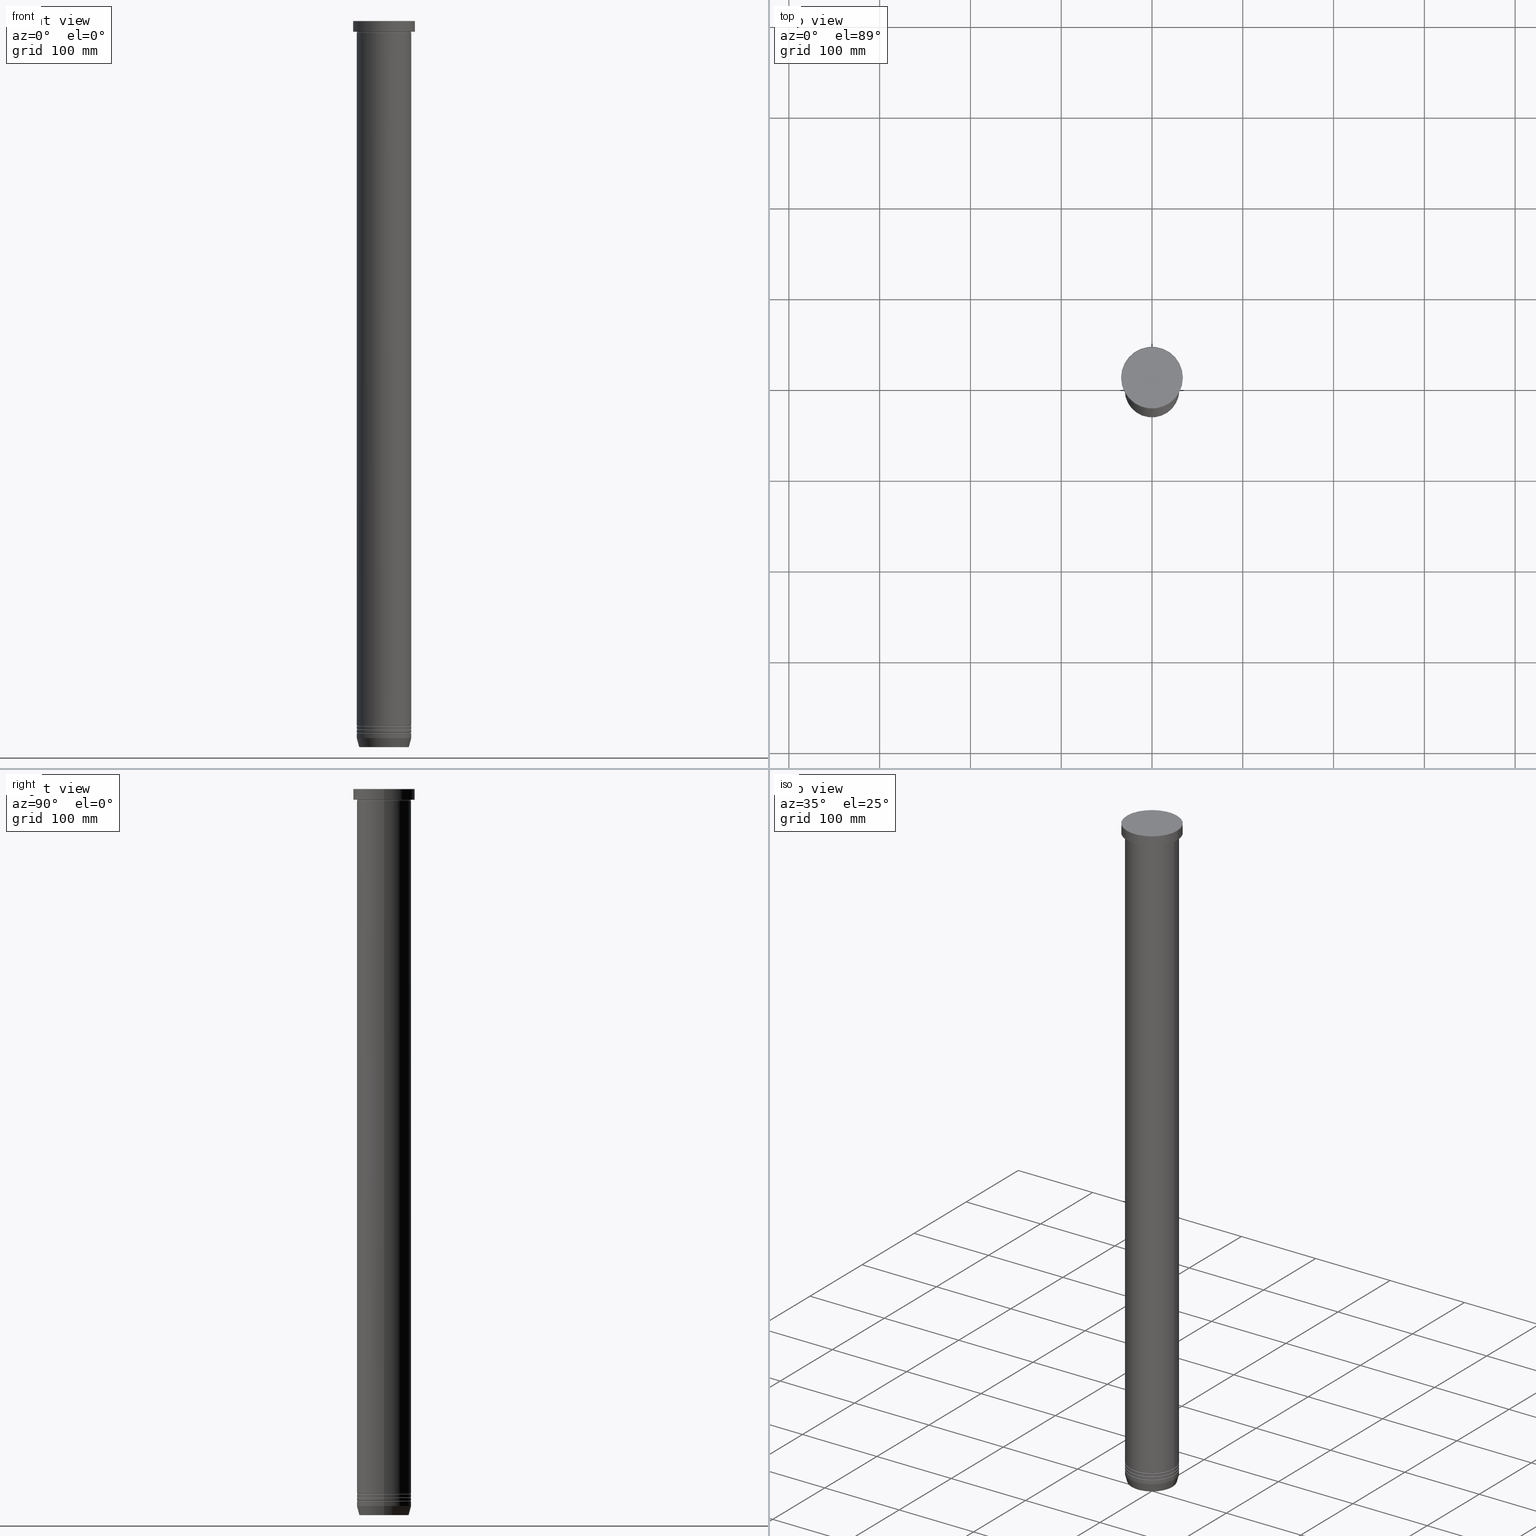
[diagram: canonical four-view strip — front | top / right | iso, engineering-drawing reading convention]
A machine part, canonical four-view strip (front | top / right | iso — engineering-drawing reading convention). The complete STEP part file that produces these views, byte-faithful:
ISO-10303-21;
HEADER;
FILE_DESCRIPTION (( 'STEP AP203' ),
    '1' );
FILE_NAME ('0e6c.STEP',
    '2024-01-02T17:02:29',
    ( '' ),
    ( '' ),
    'SwSTEP 2.0',
    'SolidWorks 2019',
    '' );
FILE_SCHEMA (( 'CONFIG_CONTROL_DESIGN' ));
ENDSEC;

DATA;
#1 = DIRECTION ( 'NONE',  ( -0.000000000000000000, -0.000000000000000000, 1.000000000000000000 ) ) ;
#2 = ORIENTED_EDGE ( 'NONE', *, *, #600, .F. ) ;
#3 = DIRECTION ( 'NONE',  ( 0.000000000000000000, 0.000000000000000000, -1.000000000000000000 ) ) ;
#4 = ORIENTED_EDGE ( 'NONE', *, *, #44, .F. ) ;
#5 = EDGE_CURVE ( 'NONE', #649, #228, #813, .T. ) ;
#6 = DIRECTION ( 'NONE',  ( -0.000000000000000000, -1.000000000000000000, -0.000000000000000000 ) ) ;
#7 = AXIS2_PLACEMENT_3D ( 'NONE', #935, #442, #110 ) ;
#8 = CIRCLE ( 'NONE', #321, 27.41980749484377000 ) ;
#9 = LINE ( 'NONE', #406, #27 ) ;
#10 = VECTOR ( 'NONE', #268, 1000.000000000000000 ) ;
#11 = TOROIDAL_SURFACE ( 'NONE', #192, 30.00000000000000000, 0.5000000000000000000 ) ;
#12 = DIRECTION ( 'NONE',  ( 1.000000000000000000, 0.000000000000000000, 0.000000000000000000 ) ) ;
#13 = ADVANCED_FACE ( 'NONE', ( #750 ), #851, .T. ) ;
#14 = DIRECTION ( 'NONE',  ( -0.000000000000000000, -0.000000000000000000, 1.000000000000000000 ) ) ;
#15 = CARTESIAN_POINT ( 'NONE',  ( 0.000000000000000000, 0.000000000000000000, 0.000000000000000000 ) ) ;
#16 = ORIENTED_EDGE ( 'NONE', *, *, #539, .T. ) ;
#17 = DIRECTION ( 'NONE',  ( 0.000000000000000000, 0.000000000000000000, -1.000000000000000000 ) ) ;
#18 = EDGE_CURVE ( 'NONE', #29, #691, #153, .T. ) ;
#19 = DIRECTION ( 'NONE',  ( 1.000000000000000000, 0.000000000000000000, 0.000000000000000000 ) ) ;
#20 = DIRECTION ( 'NONE',  ( 0.000000000000000000, 0.000000000000000000, -1.000000000000000000 ) ) ;
#21 = ORIENTED_EDGE ( 'NONE', *, *, #616, .T. ) ;
#22 = DIRECTION ( 'NONE',  ( 1.000000000000000000, 0.000000000000000000, 0.000000000000000000 ) ) ;
#23 = UNCERTAINTY_MEASURE_WITH_UNIT (LENGTH_MEASURE( 1.000000000000000082E-05 ), #856, 'distance_accuracy_value', 'NONE');
#24 = ORIENTED_EDGE ( 'NONE', *, *, #687, .T. ) ;
#25 = CARTESIAN_POINT ( 'NONE',  ( 0.000000000000000000, 0.000000000000000000, -780.4999999999998863 ) ) ;
#26 = CARTESIAN_POINT ( 'NONE',  ( 30.00000000000000000, 0.000000000000000000, -780.9999999999998863 ) ) ;
#27 = VECTOR ( 'NONE', #73, 1000.000000000000000 ) ;
#28 = PERSON ( 'NEUR�EN�', 'NEUR�EN�', 'NEUR�EN�', ('NEUR�EN�'), ('NEUR�EN�'), ('NEUR�EN�') ) ;
#29 = VERTEX_POINT ( 'NONE', #182 ) ;
#30 = LINE ( 'NONE', #850, #189 ) ;
#31 = CIRCLE ( 'NONE', #257, 0.5000000000000004441 ) ;
#32 = AXIS2_PLACEMENT_3D ( 'NONE', #167, #316, #404 ) ;
#33 = ORIENTED_EDGE ( 'NONE', *, *, #1016, .F. ) ;
#34 = CARTESIAN_POINT ( 'NONE',  ( -34.00000000000000000, 4.163799117101000559E-15, -11.99999999999999645 ) ) ;
#35 = CARTESIAN_POINT ( 'NONE',  ( -30.00000000000000000, 3.673940397442059178E-15, 0.000000000000000000 ) ) ;
#36 = ORIENTED_EDGE ( 'NONE', *, *, #205, .T. ) ;
#37 = DIRECTION ( 'NONE',  ( 0.000000000000000000, 0.000000000000000000, -1.000000000000000000 ) ) ;
#38 = EDGE_CURVE ( 'NONE', #471, #327, #795, .T. ) ;
#39 = ORIENTED_EDGE ( 'NONE', *, *, #952, .T. ) ;
#40 = APPROVAL_ROLE ( '' ) ;
#41 = DIRECTION ( 'NONE',  ( -0.000000000000000000, -0.000000000000000000, 1.000000000000000000 ) ) ;
#42 = ORIENTED_EDGE ( 'NONE', *, *, #996, .T. ) ;
#43 = PLANE ( 'NONE',  #730 ) ;
#44 = EDGE_CURVE ( 'NONE', #471, #93, #384, .T. ) ;
#45 = DATE_AND_TIME ( #448, #81 ) ;
#46 = DIRECTION ( 'NONE',  ( -0.000000000000000000, -0.000000000000000000, 1.000000000000000000 ) ) ;
#47 = DIRECTION ( 'NONE',  ( 1.000000000000000000, 0.000000000000000000, 0.000000000000000000 ) ) ;
#48 = AXIS2_PLACEMENT_3D ( 'NONE', #151, #382, #136 ) ;
#49 = CIRCLE ( 'NONE', #820, 29.50000000000000000 ) ;
#50 = CIRCLE ( 'NONE', #1055, 30.00000000000000000 ) ;
#51 = EDGE_CURVE ( 'NONE', #518, #363, #916, .T. ) ;
#52 = CARTESIAN_POINT ( 'NONE',  ( -34.00000000000000000, 4.163799117101000559E-15, -0.4999999999999935052 ) ) ;
#53 = ORIENTED_EDGE ( 'NONE', *, *, #205, .F. ) ;
#54 = DATE_AND_TIME ( #531, #604 ) ;
#55 = DIRECTION ( 'NONE',  ( -1.000000000000000000, 1.224646799147349509E-16, 0.000000000000000000 ) ) ;
#56 = CARTESIAN_POINT ( 'NONE',  ( 0.000000000000000000, 0.000000000000000000, 0.000000000000000000 ) ) ;
#57 = DIRECTION ( 'NONE',  ( 1.000000000000000000, 0.000000000000000000, 0.000000000000000000 ) ) ;
#58 = VERTEX_POINT ( 'NONE', #592 ) ;
#59 = DIRECTION ( 'NONE',  ( -0.000000000000000000, -0.000000000000000000, 1.000000000000000000 ) ) ;
#60 = EDGE_CURVE ( 'NONE', #363, #518, #351, .T. ) ;
#61 = TOROIDAL_SURFACE ( 'NONE', #662, 29.99999999999999289, 0.5000000000000000000 ) ;
#62 = VERTEX_POINT ( 'NONE', #999 ) ;
#63 = AXIS2_PLACEMENT_3D ( 'NONE', #142, #789, #943 ) ;
#64 = AXIS2_PLACEMENT_3D ( 'NONE', #1058, #1, #825 ) ;
#65 = CARTESIAN_POINT ( 'NONE',  ( -30.00000000000000000, 3.673940397442059178E-15, -12.99999999999999822 ) ) ;
#66 = ORIENTED_EDGE ( 'NONE', *, *, #1060, .F. ) ;
#67 = CARTESIAN_POINT ( 'NONE',  ( 0.000000000000000000, 0.000000000000000000, -780.5000000000000000 ) ) ;
#68 = EDGE_CURVE ( 'NONE', #649, #998, #766, .T. ) ;
#69 = ORIENTED_EDGE ( 'NONE', *, *, #722, .T. ) ;
#70 = ADVANCED_FACE ( 'NONE', ( #694 ), #453, .F. ) ;
#71 = DIRECTION ( 'NONE',  ( 0.000000000000000000, 0.000000000000000000, -1.000000000000000000 ) ) ;
#72 = ORIENTED_EDGE ( 'NONE', *, *, #347, .T. ) ;
#73 = DIRECTION ( 'NONE',  ( -0.2588190451025213501, 3.169619151431772337E-17, 0.9659258262890680902 ) ) ;
#74 = ORIENTED_EDGE ( 'NONE', *, *, #414, .T. ) ;
#75 = APPROVAL_STATUS ( 'not_yet_approved' ) ;
#76 = DIRECTION ( 'NONE',  ( -0.000000000000000000, -0.000000000000000000, 1.000000000000000000 ) ) ;
#77 = EDGE_LOOP ( 'NONE', ( #735, #16, #831, #612 ) ) ;
#78 = DIRECTION ( 'NONE',  ( -0.000000000000000000, -0.000000000000000000, 1.000000000000000000 ) ) ;
#79 = EDGE_LOOP ( 'NONE', ( #157, #989, #564, #131 ) ) ;
#80 = AXIS2_PLACEMENT_3D ( 'NONE', #171, #97, #88 ) ;
#81 = LOCAL_TIME ( 18, 2, 29.00000000000000000, #129 ) ;
#82 = CIRCLE ( 'NONE', #639, 0.5000000000000004441 ) ;
#83 = ADVANCED_FACE ( 'NONE', ( #199 ), #936, .F. ) ;
#84 = CARTESIAN_POINT ( 'NONE',  ( 29.49999999999999289, 0.000000000000000000, -784.4999999999998863 ) ) ;
#85 = CIRCLE ( 'NONE', #752, 34.00000000000000000 ) ;
#86 = DIRECTION ( 'NONE',  ( -0.000000000000000000, -0.000000000000000000, 1.000000000000000000 ) ) ;
#87 = EDGE_CURVE ( 'NONE', #998, #738, #692, .T. ) ;
#88 = DIRECTION ( 'NONE',  ( 1.000000000000000000, 0.000000000000000000, 0.000000000000000000 ) ) ;
#89 = DIRECTION ( 'NONE',  ( -0.000000000000000000, -0.000000000000000000, 1.000000000000000000 ) ) ;
#90 = VERTEX_POINT ( 'NONE', #686 ) ;
#91 = CARTESIAN_POINT ( 'NONE',  ( 30.00000000000000000, 0.000000000000000000, -784.9999999999998863 ) ) ;
#92 = ORIENTED_EDGE ( 'NONE', *, *, #149, .T. ) ;
#93 = VERTEX_POINT ( 'NONE', #765 ) ;
#94 = DIRECTION ( 'NONE',  ( -0.000000000000000000, -0.000000000000000000, 1.000000000000000000 ) ) ;
#95 = CARTESIAN_POINT ( 'NONE',  ( 0.000000000000000000, 0.000000000000000000, -780.9999999999998863 ) ) ;
#96 = EDGE_LOOP ( 'NONE', ( #467, #74, #39, #72 ) ) ;
#97 = DIRECTION ( 'NONE',  ( -0.000000000000000000, -0.000000000000000000, 1.000000000000000000 ) ) ;
#98 = EDGE_CURVE ( 'NONE', #602, #1037, #586, .T. ) ;
#99 = PRODUCT_DEFINITION_FORMATION_WITH_SPECIFIED_SOURCE ( 'LIBOVOLN�', '', #877, .NOT_KNOWN. ) ;
#100 = CARTESIAN_POINT ( 'NONE',  ( -30.00000000000000355, 3.673940397442059967E-15, -140.0000000000000000 ) ) ;
#101 = AXIS2_PLACEMENT_3D ( 'NONE', #634, #373, #703 ) ;
#102 = CARTESIAN_POINT ( 'NONE',  ( 0.000000000000000000, 0.000000000000000000, -776.4999999999998863 ) ) ;
#103 = AXIS2_PLACEMENT_3D ( 'NONE', #770, #1013, #509 ) ;
#104 = AXIS2_PLACEMENT_3D ( 'NONE', #847, #187, #19 ) ;
#105 = ORIENTED_EDGE ( 'NONE', *, *, #982, .T. ) ;
#106 = EDGE_CURVE ( 'NONE', #313, #62, #1022, .T. ) ;
#107 = CARTESIAN_POINT ( 'NONE',  ( 0.000000000000000000, 0.000000000000000000, -11.99999999999999645 ) ) ;
#108 = DIRECTION ( 'NONE',  ( -0.000000000000000000, -0.000000000000000000, 1.000000000000000000 ) ) ;
#109 = ORIENTED_EDGE ( 'NONE', *, *, #846, .T. ) ;
#110 = DIRECTION ( 'NONE',  ( -1.000000000000000000, 0.000000000000000000, 0.000000000000000000 ) ) ;
#111 = CARTESIAN_POINT ( 'NONE',  ( 0.000000000000000000, 0.000000000000000000, 0.000000000000000000 ) ) ;
#112 = DIRECTION ( 'NONE',  ( -1.224646799147353207E-16, 1.000000000000000000, 0.000000000000000000 ) ) ;
#113 = EDGE_LOOP ( 'NONE', ( #463, #349 ) ) ;
#114 = CARTESIAN_POINT ( 'NONE',  ( 0.000000000000000000, 30.00000000000000000, -140.0000000000000000 ) ) ;
#115 = ORIENTED_EDGE ( 'NONE', *, *, #632, .F. ) ;
#116 =( NAMED_UNIT ( * ) PLANE_ANGLE_UNIT ( ) SI_UNIT ( $, .RADIAN. ) );
#117 = ADVANCED_FACE ( 'NONE', ( #276 ), #587, .T. ) ;
#118 = CARTESIAN_POINT ( 'NONE',  ( 27.41980749484377000, 0.000000000000000000, -799.6294095225513274 ) ) ;
#119 = TOROIDAL_SURFACE ( 'NONE', #473, 29.99999999999999289, 0.5000000000000000000 ) ;
#120 = ORIENTED_EDGE ( 'NONE', *, *, #38, .T. ) ;
#121 = DIRECTION ( 'NONE',  ( -0.7071067811865524577, 0.000000000000000000, -0.7071067811865426878 ) ) ;
#122 = AXIS2_PLACEMENT_3D ( 'NONE', #532, #135, #57 ) ;
#123 = EDGE_CURVE ( 'NONE', #838, #655, #603, .T. ) ;
#124 = CIRCLE ( 'NONE', #104, 29.49999999999999289 ) ;
#125 = ORIENTED_EDGE ( 'NONE', *, *, #230, .T. ) ;
#126 = CARTESIAN_POINT ( 'NONE',  ( -30.00000000000000000, 3.673940397442059178E-15, -12.49999999999999645 ) ) ;
#127 = ORIENTED_EDGE ( 'NONE', *, *, #87, .T. ) ;
#128 = CARTESIAN_POINT ( 'NONE',  ( -29.99999999999999645, 3.673940397442059178E-15, 0.000000000000000000 ) ) ;
#129 = COORDINATED_UNIVERSAL_TIME_OFFSET ( 1, 0, .AHEAD. ) ;
#130 = DIRECTION ( 'NONE',  ( 0.2588190451025213501, 0.000000000000000000, 0.9659258262890680902 ) ) ;
#131 = ORIENTED_EDGE ( 'NONE', *, *, #412, .F. ) ;
#132 = CARTESIAN_POINT ( 'NONE',  ( 0.000000000000000000, 0.000000000000000000, -789.9999999999998863 ) ) ;
#133 = ADVANCED_FACE ( 'NONE', ( #1015 ), #43, .T. ) ;
#134 = APPROVAL_DATE_TIME ( #1049, #185 ) ;
#135 = DIRECTION ( 'NONE',  ( -0.000000000000000000, -0.000000000000000000, 1.000000000000000000 ) ) ;
#136 = DIRECTION ( 'NONE',  ( -1.000000000000000000, -1.224646799147349509E-16, 0.000000000000000000 ) ) ;
#137 = AXIS2_PLACEMENT_3D ( 'NONE', #845, #194, #436 ) ;
#138 = AXIS2_PLACEMENT_3D ( 'NONE', #732, #498, #976 ) ;
#139 = AXIS2_PLACEMENT_3D ( 'NONE', #102, #197, #933 ) ;
#140 = ADVANCED_FACE ( 'NONE', ( #285 ), #272, .F. ) ;
#141 = CARTESIAN_POINT ( 'NONE',  ( 0.000000000000000000, 0.000000000000000000, 0.000000000000000000 ) ) ;
#142 = CARTESIAN_POINT ( 'NONE',  ( 30.00000000000000000, 0.000000000000000000, -12.49999999999999645 ) ) ;
#143 = EDGE_LOOP ( 'NONE', ( #562, #841, #345, #677 ) ) ;
#144 = FACE_OUTER_BOUND ( 'NONE', #535, .T. ) ;
#145 = CARTESIAN_POINT ( 'NONE',  ( 29.99999999999999289, 3.673940397442058389E-15, -784.5000000000000000 ) ) ;
#146 = ORIENTED_EDGE ( 'NONE', *, *, #18, .F. ) ;
#147 = FACE_OUTER_BOUND ( 'NONE', #484, .T. ) ;
#148 = DIRECTION ( 'NONE',  ( 1.000000000000000000, 0.000000000000000000, 0.000000000000000000 ) ) ;
#149 = EDGE_CURVE ( 'NONE', #838, #1019, #402, .T. ) ;
#150 = ORIENTED_EDGE ( 'NONE', *, *, #123, .F. ) ;
#151 = CARTESIAN_POINT ( 'NONE',  ( 29.99999999999999289, 3.673940397442058389E-15, -780.5000000000000000 ) ) ;
#152 = CIRCLE ( 'NONE', #957, 0.4999999999999449329 ) ;
#153 = CIRCLE ( 'NONE', #319, 30.00000000000000000 ) ;
#154 = AXIS2_PLACEMENT_3D ( 'NONE', #717, #711, #790 ) ;
#155 = CIRCLE ( 'NONE', #322, 0.4999999999999449329 ) ;
#156 = DIRECTION ( 'NONE',  ( 1.000000000000000000, 0.000000000000000000, 0.000000000000000000 ) ) ;
#157 = ORIENTED_EDGE ( 'NONE', *, *, #51, .T. ) ;
#158 = DIRECTION ( 'NONE',  ( -0.000000000000000000, -0.000000000000000000, 1.000000000000000000 ) ) ;
#159 = CC_DESIGN_DATE_AND_TIME_ASSIGNMENT ( #54, #320, ( #432 ) ) ;
#160 = PERSON_AND_ORGANIZATION_ROLE ( 'creator' ) ;
#161 = CYLINDRICAL_SURFACE ( 'NONE', #973, 30.00000000000000000 ) ;
#162 = ORIENTED_EDGE ( 'NONE', *, *, #98, .T. ) ;
#163 = CARTESIAN_POINT ( 'NONE',  ( 0.000000000000000000, 0.000000000000000000, -780.4999999999998863 ) ) ;
#164 = ORIENTED_EDGE ( 'NONE', *, *, #497, .F. ) ;
#165 = DIRECTION ( 'NONE',  ( 1.000000000000000000, 0.000000000000000000, 0.000000000000000000 ) ) ;
#166 = EDGE_CURVE ( 'NONE', #29, #417, #30, .T. ) ;
#167 = CARTESIAN_POINT ( 'NONE',  ( -29.99999999999999289, 0.000000000000000000, -784.5000000000000000 ) ) ;
#168 = ORIENTED_EDGE ( 'NONE', *, *, #106, .F. ) ;
#169 = FACE_OUTER_BOUND ( 'NONE', #529, .T. ) ;
#170 = VERTEX_POINT ( 'NONE', #530 ) ;
#171 = CARTESIAN_POINT ( 'NONE',  ( 0.000000000000000000, 0.000000000000000000, -800.0000000000000000 ) ) ;
#172 = EDGE_CURVE ( 'NONE', #486, #518, #860, .T. ) ;
#173 = CIRCLE ( 'NONE', #101, 0.5000000000000004441 ) ;
#174 = AXIS2_PLACEMENT_3D ( 'NONE', #997, #108, #583 ) ;
#175 = CARTESIAN_POINT ( 'NONE',  ( 0.000000000000000000, 0.000000000000000000, -140.0000000000000000 ) ) ;
#176 = CIRCLE ( 'NONE', #528, 30.00000000000000000 ) ;
#177 = EDGE_LOOP ( 'NONE', ( #685, #749, #812, #917 ) ) ;
#178 = DIRECTION ( 'NONE',  ( -0.000000000000000000, -0.000000000000000000, 1.000000000000000000 ) ) ;
#179 = DIRECTION ( 'NONE',  ( 1.000000000000000000, 0.000000000000000000, 0.000000000000000000 ) ) ;
#180 = DIRECTION ( 'NONE',  ( 1.000000000000000000, 0.000000000000000000, 0.000000000000000000 ) ) ;
#181 = ORIENTED_EDGE ( 'NONE', *, *, #782, .T. ) ;
#182 = CARTESIAN_POINT ( 'NONE',  ( 30.00000000000000000, 0.000000000000000000, -140.0000000000000000 ) ) ;
#183 = LINE ( 'NONE', #500, #940 ) ;
#184 = CARTESIAN_POINT ( 'NONE',  ( -30.00000000000000000, 0.000000000000000000, -11.99999999999999645 ) ) ;
#185 = APPROVAL ( #606, 'NEUR�EN�' ) ;
#186 = ORIENTED_EDGE ( 'NONE', *, *, #60, .T. ) ;
#187 = DIRECTION ( 'NONE',  ( 0.000000000000000000, 0.000000000000000000, -1.000000000000000000 ) ) ;
#188 = AXIS2_PLACEMENT_3D ( 'NONE', #350, #346, #674 ) ;
#189 = VECTOR ( 'NONE', #773, 1000.000000000000000 ) ;
#190 = DIRECTION ( 'NONE',  ( 1.000000000000000000, 0.000000000000000000, 0.000000000000000000 ) ) ;
#191 = AXIS2_PLACEMENT_3D ( 'NONE', #601, #843, #190 ) ;
#192 = AXIS2_PLACEMENT_3D ( 'NONE', #492, #89, #656 ) ;
#193 = ORIENTED_EDGE ( 'NONE', *, *, #549, .T. ) ;
#194 = DIRECTION ( 'NONE',  ( -0.000000000000000000, -0.000000000000000000, 1.000000000000000000 ) ) ;
#195 = ORIENTED_EDGE ( 'NONE', *, *, #426, .T. ) ;
#196 = DIRECTION ( 'NONE',  ( 0.000000000000000000, 0.000000000000000000, -1.000000000000000000 ) ) ;
#197 = DIRECTION ( 'NONE',  ( -0.000000000000000000, -0.000000000000000000, 1.000000000000000000 ) ) ;
#198 = ORIENTED_EDGE ( 'NONE', *, *, #149, .F. ) ;
#199 = FACE_OUTER_BOUND ( 'NONE', #77, .T. ) ;
#200 = ADVANCED_FACE ( 'NONE', ( #863 ), #697, .F. ) ;
#201 = ORIENTED_EDGE ( 'NONE', *, *, #315, .T. ) ;
#202 = DIRECTION ( 'NONE',  ( 1.000000000000000000, 0.000000000000000000, 0.000000000000000000 ) ) ;
#203 = ORIENTED_EDGE ( 'NONE', *, *, #840, .T. ) ;
#204 = CARTESIAN_POINT ( 'NONE',  ( -30.00000000000000000, 3.673940397442059178E-15, 0.000000000000000000 ) ) ;
#205 = EDGE_CURVE ( 'NONE', #510, #93, #8, .T. ) ;
#206 = CARTESIAN_POINT ( 'NONE',  ( 0.000000000000000000, 0.000000000000000000, -784.5000000000000000 ) ) ;
#207 = DIRECTION ( 'NONE',  ( -0.000000000000000000, -0.000000000000000000, 1.000000000000000000 ) ) ;
#208 = CIRCLE ( 'NONE', #154, 29.99999999999999289 ) ;
#209 = EDGE_LOOP ( 'NONE', ( #333, #802 ) ) ;
#210 = DIRECTION ( 'NONE',  ( -0.000000000000000000, -0.000000000000000000, 1.000000000000000000 ) ) ;
#211 = TOROIDAL_SURFACE ( 'NONE', #293, 26.93684458169924056, 0.5000000000000000000 ) ;
#212 = CARTESIAN_POINT ( 'NONE',  ( 0.000000000000000000, 0.000000000000000000, -783.9999999999998863 ) ) ;
#213 = ADVANCED_FACE ( 'NONE', ( #144 ), #607, .F. ) ;
#214 = CARTESIAN_POINT ( 'NONE',  ( 0.000000000000000000, 0.000000000000000000, -776.5000000000000000 ) ) ;
#215 = COORDINATED_UNIVERSAL_TIME_OFFSET ( 1, 0, .AHEAD. ) ;
#216 = DIRECTION ( 'NONE',  ( 0.000000000000000000, 0.000000000000000000, -1.000000000000000000 ) ) ;
#217 = EDGE_LOOP ( 'NONE', ( #731, #125, #849, #787 ) ) ;
#218 = DIRECTION ( 'NONE',  ( -1.000000000000000000, 0.000000000000000000, 0.000000000000000000 ) ) ;
#219 = CC_DESIGN_DATE_AND_TIME_ASSIGNMENT ( #481, #779, ( #796 ) ) ;
#220 = CYLINDRICAL_SURFACE ( 'NONE', #122, 34.00000000000000000 ) ;
#221 = ORIENTED_EDGE ( 'NONE', *, *, #792, .T. ) ;
#222 = CARTESIAN_POINT ( 'NONE',  ( 0.000000000000000000, 0.000000000000000000, -799.5000000000001137 ) ) ;
#223 = AXIS2_PLACEMENT_3D ( 'NONE', #658, #805, #667 ) ;
#224 = CIRCLE ( 'NONE', #388, 0.4999999999999449329 ) ;
#225 = CIRCLE ( 'NONE', #1024, 29.49999999999999289 ) ;
#226 = SHAPE_DEFINITION_REPRESENTATION ( #775, #574 ) ;
#227 = DIRECTION ( 'NONE',  ( 1.000000000000000000, 0.000000000000000000, 0.000000000000000000 ) ) ;
#228 = VERTEX_POINT ( 'NONE', #959 ) ;
#229 = FACE_OUTER_BOUND ( 'NONE', #270, .T. ) ;
#230 = EDGE_CURVE ( 'NONE', #551, #897, #900, .T. ) ;
#231 = DIRECTION ( 'NONE',  ( 0.000000000000000000, 0.000000000000000000, -1.000000000000000000 ) ) ;
#232 = FACE_OUTER_BOUND ( 'NONE', #556, .T. ) ;
#233 = APPLICATION_CONTEXT ( 'configuration controlled 3d designs of mechanical parts and assemblies' ) ;
#234 = ADVANCED_FACE ( 'NONE', ( #788 ), #236, .T. ) ;
#235 = DIRECTION ( 'NONE',  ( 1.000000000000000000, 0.000000000000000000, 0.000000000000000000 ) ) ;
#236 = CYLINDRICAL_SURFACE ( 'NONE', #852, 30.00000000000000000 ) ;
#237 = LOCAL_TIME ( 18, 2, 29.00000000000000000, #215 ) ;
#238 = AXIS2_PLACEMENT_3D ( 'NONE', #617, #721, #47 ) ;
#239 = CIRCLE ( 'NONE', #357, 29.99999999999999645 ) ;
#240 = AXIS2_PLACEMENT_3D ( 'NONE', #745, #566, #496 ) ;
#241 = CARTESIAN_POINT ( 'NONE',  ( 0.000000000000000000, 0.000000000000000000, -799.5000000000001137 ) ) ;
#242 = ORIENTED_EDGE ( 'NONE', *, *, #474, .F. ) ;
#243 = DIRECTION ( 'NONE',  ( 0.000000000000000000, -0.000000000000000000, 1.000000000000000000 ) ) ;
#244 = ADVANCED_FACE ( 'NONE', ( #948 ), #290, .F. ) ;
#245 = VERTEX_POINT ( 'NONE', #887 ) ;
#246 = DIRECTION ( 'NONE',  ( -1.000000000000000000, -1.224646799147349509E-16, 0.000000000000000000 ) ) ;
#247 = CARTESIAN_POINT ( 'NONE',  ( 30.00000000000000000, 0.000000000000000000, -12.99999999999999822 ) ) ;
#248 = ORIENTED_EDGE ( 'NONE', *, *, #598, .F. ) ;
#249 = EDGE_CURVE ( 'NONE', #58, #602, #208, .T. ) ;
#250 = FACE_OUTER_BOUND ( 'NONE', #895, .T. ) ;
#251 = EDGE_LOOP ( 'NONE', ( #520, #456, #633, #651 ) ) ;
#252 = DIRECTION ( 'NONE',  ( 1.000000000000000000, 0.000000000000000000, 0.000000000000000000 ) ) ;
#253 = ORIENTED_EDGE ( 'NONE', *, *, #782, .F. ) ;
#254 = ORIENTED_EDGE ( 'NONE', *, *, #672, .F. ) ;
#255 = AXIS2_PLACEMENT_3D ( 'NONE', #742, #746, #575 ) ;
#256 = ADVANCED_FACE ( 'NONE', ( #232 ), #1041, .T. ) ;
#257 = AXIS2_PLACEMENT_3D ( 'NONE', #279, #112, #428 ) ;
#258 = DIRECTION ( 'NONE',  ( 1.000000000000000000, 0.000000000000000000, 0.000000000000000000 ) ) ;
#259 =( GEOMETRIC_REPRESENTATION_CONTEXT ( 3 ) GLOBAL_UNCERTAINTY_ASSIGNED_CONTEXT ( ( #23 ) ) GLOBAL_UNIT_ASSIGNED_CONTEXT ( ( #856, #116, #507 ) ) REPRESENTATION_CONTEXT ( 'NONE', 'WORKASPACE' ) );
#260 = DIRECTION ( 'NONE',  ( -1.000000000000000000, 0.000000000000000000, 0.000000000000000000 ) ) ;
#261 = DIRECTION ( 'NONE',  ( 0.7071067811865524577, 8.659560562354994488E-17, -0.7071067811865426878 ) ) ;
#262 = ADVANCED_FACE ( 'NONE', ( #538 ), #751, .F. ) ;
#263 = DIRECTION ( 'NONE',  ( 1.000000000000000000, 0.000000000000000000, 0.000000000000000000 ) ) ;
#264 = DIRECTION ( 'NONE',  ( 1.000000000000000000, 0.000000000000000000, 0.000000000000000000 ) ) ;
#265 = EDGE_CURVE ( 'NONE', #58, #591, #552, .T. ) ;
#266 = EDGE_LOOP ( 'NONE', ( #314, #2, #127, #644 ) ) ;
#267 = DIRECTION ( 'NONE',  ( 1.224646799147353207E-16, 1.000000000000000000, 0.000000000000000000 ) ) ;
#268 = DIRECTION ( 'NONE',  ( -0.000000000000000000, -0.000000000000000000, 1.000000000000000000 ) ) ;
#269 = ORIENTED_EDGE ( 'NONE', *, *, #827, .F. ) ;
#270 = EDGE_LOOP ( 'NONE', ( #951, #593, #660, #580 ) ) ;
#271 = DIRECTION ( 'NONE',  ( -1.000000000000000000, 0.000000000000000000, 0.000000000000000000 ) ) ;
#272 = TOROIDAL_SURFACE ( 'NONE', #868, 29.99999999999999289, 0.5000000000000000000 ) ;
#273 = DIRECTION ( 'NONE',  ( -0.000000000000000000, -0.000000000000000000, 1.000000000000000000 ) ) ;
#274 = CIRCLE ( 'NONE', #799, 0.5000000000000004441 ) ;
#275 = ORIENTED_EDGE ( 'NONE', *, *, #598, .T. ) ;
#276 = FACE_OUTER_BOUND ( 'NONE', #755, .T. ) ;
#277 = EDGE_CURVE ( 'NONE', #602, #58, #553, .T. ) ;
#278 = CARTESIAN_POINT ( 'NONE',  ( 29.99999999999999289, 0.000000000000000000, -784.4999999999998863 ) ) ;
#279 = CARTESIAN_POINT ( 'NONE',  ( 30.00000000000000000, 3.673940397442059178E-15, -12.49999999999999645 ) ) ;
#280 = ORIENTED_EDGE ( 'NONE', *, *, #512, .F. ) ;
#281 = DIRECTION ( 'NONE',  ( -0.000000000000000000, -0.000000000000000000, 1.000000000000000000 ) ) ;
#282 = CYLINDRICAL_SURFACE ( 'NONE', #835, 30.00000000000000000 ) ;
#283 = LINE ( 'NONE', #915, #10 ) ;
#284 = ORIENTED_EDGE ( 'NONE', *, *, #308, .F. ) ;
#285 = FACE_OUTER_BOUND ( 'NONE', #641, .T. ) ;
#286 = CALENDAR_DATE ( 2024, 2, 1 ) ;
#287 = ADVANCED_FACE ( 'NONE', ( #793 ), #119, .F. ) ;
#288 = AXIS2_PLACEMENT_3D ( 'NONE', #107, #577, #271 ) ;
#289 = DIRECTION ( 'NONE',  ( -0.000000000000000000, -0.000000000000000000, 1.000000000000000000 ) ) ;
#290 = TOROIDAL_SURFACE ( 'NONE', #797, 29.99999999999999289, 0.5000000000000000000 ) ;
#291 = EDGE_LOOP ( 'NONE', ( #105, #410 ) ) ;
#292 = CONICAL_SURFACE ( 'NONE', #506, 33.50000000000000000, 0.7853981633974552734 ) ;
#293 = AXIS2_PLACEMENT_3D ( 'NONE', #241, #557, #809 ) ;
#294 = PERSON_AND_ORGANIZATION ( #28, #967 ) ;
#295 = DIRECTION ( 'NONE',  ( 0.000000000000000000, 0.000000000000000000, -1.000000000000000000 ) ) ;
#296 = PERSON_AND_ORGANIZATION_ROLE ( 'classification_officer' ) ;
#297 = CARTESIAN_POINT ( 'NONE',  ( 0.000000000000000000, 0.000000000000000000, -780.4999999999998863 ) ) ;
#298 = ORIENTED_EDGE ( 'NONE', *, *, #249, .F. ) ;
#299 = DIRECTION ( 'NONE',  ( -0.000000000000000000, -0.000000000000000000, 1.000000000000000000 ) ) ;
#300 = PERSON_AND_ORGANIZATION ( #28, #967 ) ;
#301 = DIRECTION ( 'NONE',  ( 1.000000000000000000, 0.000000000000000000, 0.000000000000000000 ) ) ;
#302 = AXIS2_PLACEMENT_3D ( 'NONE', #832, #267, #581 ) ;
#303 = ORIENTED_EDGE ( 'NONE', *, *, #698, .T. ) ;
#304 = CARTESIAN_POINT ( 'NONE',  ( 0.000000000000000000, 0.000000000000000000, -783.9999999999998863 ) ) ;
#305 = AXIS2_PLACEMENT_3D ( 'NONE', #411, #907, #252 ) ;
#306 = AXIS2_PLACEMENT_3D ( 'NONE', #461, #470, #216 ) ;
#307 = ADVANCED_FACE ( 'NONE', ( #147 ), #968, .T. ) ;
#308 = EDGE_CURVE ( 'NONE', #327, #510, #224, .T. ) ;
#309 = CARTESIAN_POINT ( 'NONE',  ( -30.00000000000000000, 3.673940397442059178E-15, -140.0000000000000000 ) ) ;
#310 = DIRECTION ( 'NONE',  ( 0.000000000000000000, 0.000000000000000000, -1.000000000000000000 ) ) ;
#311 = ORIENTED_EDGE ( 'NONE', *, *, #722, .F. ) ;
#312 = CARTESIAN_POINT ( 'NONE',  ( 0.000000000000000000, 0.000000000000000000, -780.4999999999998863 ) ) ;
#313 = VERTEX_POINT ( 'NONE', #1028 ) ;
#314 = ORIENTED_EDGE ( 'NONE', *, *, #5, .F. ) ;
#315 = EDGE_CURVE ( 'NONE', #891, #560, #455, .T. ) ;
#316 = DIRECTION ( 'NONE',  ( -0.000000000000000000, -1.000000000000000000, -0.000000000000000000 ) ) ;
#317 = EDGE_LOOP ( 'NONE', ( #150, #92, #193, #435 ) ) ;
#318 = DIRECTION ( 'NONE',  ( -0.000000000000000000, -0.000000000000000000, 1.000000000000000000 ) ) ;
#319 = AXIS2_PLACEMENT_3D ( 'NONE', #487, #990, #576 ) ;
#320 = DATE_TIME_ROLE ( 'creation_date' ) ;
#321 = AXIS2_PLACEMENT_3D ( 'NONE', #945, #1034, #963 ) ;
#322 = AXIS2_PLACEMENT_3D ( 'NONE', #626, #1033, #295 ) ;
#323 = APPROVAL_PERSON_ORGANIZATION ( #1029, #185, #40 ) ;
#324 = CARTESIAN_POINT ( 'NONE',  ( -30.00000000000000000, 0.000000000000000000, -12.49999999999999645 ) ) ;
#325 = EDGE_CURVE ( 'NONE', #486, #90, #173, .T. ) ;
#326 = CARTESIAN_POINT ( 'NONE',  ( 0.000000000000000000, 9.184850993605148733E-14, -800.0000000000000000 ) ) ;
#327 = VERTEX_POINT ( 'NONE', #624 ) ;
#328 = DIRECTION ( 'NONE',  ( 0.000000000000000000, 0.000000000000000000, -1.000000000000000000 ) ) ;
#329 = DIRECTION ( 'NONE',  ( -0.000000000000000000, -0.000000000000000000, 1.000000000000000000 ) ) ;
#330 = ORIENTED_EDGE ( 'NONE', *, *, #503, .F. ) ;
#331 = EDGE_LOOP ( 'NONE', ( #36, #195, #981, #880 ) ) ;
#332 = CARTESIAN_POINT ( 'NONE',  ( 29.49999999999999289, 0.000000000000000000, -780.4999999999998863 ) ) ;
#333 = ORIENTED_EDGE ( 'NONE', *, *, #942, .T. ) ;
#334 = CARTESIAN_POINT ( 'NONE',  ( 0.000000000000000000, 0.000000000000000000, -140.0000000000000000 ) ) ;
#335 = ORIENTED_EDGE ( 'NONE', *, *, #970, .F. ) ;
#336 = EDGE_LOOP ( 'NONE', ( #913, #926, #928, #359 ) ) ;
#337 = ADVANCED_FACE ( 'NONE', ( #229 ), #811, .T. ) ;
#338 = CIRCLE ( 'NONE', #570, 33.50000000000000000 ) ;
#339 = FACE_BOUND ( 'NONE', #291, .T. ) ;
#340 = AXIS2_PLACEMENT_3D ( 'NONE', #761, #196, #582 ) ;
#341 = LINE ( 'NONE', #1048, #714 ) ;
#342 = ORIENTED_EDGE ( 'NONE', *, *, #648, .F. ) ;
#343 = EDGE_CURVE ( 'NONE', #891, #944, #82, .T. ) ;
#344 = CARTESIAN_POINT ( 'NONE',  ( 29.99999999999999289, 0.000000000000000000, -776.4999999999998863 ) ) ;
#345 = ORIENTED_EDGE ( 'NONE', *, *, #728, .F. ) ;
#346 = DIRECTION ( 'NONE',  ( -0.000000000000000000, -0.000000000000000000, 1.000000000000000000 ) ) ;
#347 = EDGE_CURVE ( 'NONE', #228, #738, #1051, .T. ) ;
#348 = CARTESIAN_POINT ( 'NONE',  ( -30.00000000000000000, 3.673940397442059178E-15, -776.9999999999998863 ) ) ;
#349 = ORIENTED_EDGE ( 'NONE', *, *, #68, .T. ) ;
#350 = CARTESIAN_POINT ( 'NONE',  ( 0.000000000000000000, 0.000000000000000000, -776.9999999999998863 ) ) ;
#351 = CIRCLE ( 'NONE', #953, 30.00000000000000000 ) ;
#352 = LOCAL_TIME ( 18, 2, 29.00000000000000000, #376 ) ;
#353 = DIRECTION ( 'NONE',  ( -0.000000000000000000, -0.000000000000000000, 1.000000000000000000 ) ) ;
#354 = CIRCLE ( 'NONE', #954, 34.00000000000000000 ) ;
#355 = AXIS2_PLACEMENT_3D ( 'NONE', #444, #41, #366 ) ;
#356 = CARTESIAN_POINT ( 'NONE',  ( 29.99999999999999289, 0.000000000000000000, -783.9999999999998863 ) ) ;
#357 = AXIS2_PLACEMENT_3D ( 'NONE', #857, #289, #757 ) ;
#358 = APPROVAL ( #365, 'NEUR�EN�' ) ;
#359 = ORIENTED_EDGE ( 'NONE', *, *, #1060, .T. ) ;
#360 = DIRECTION ( 'NONE',  ( -1.000000000000000000, 0.000000000000000000, 0.000000000000000000 ) ) ;
#361 = DIRECTION ( 'NONE',  ( 0.000000000000000000, -1.000000000000000000, 0.000000000000000000 ) ) ;
#362 = FACE_OUTER_BOUND ( 'NONE', #1057, .T. ) ;
#363 = VERTEX_POINT ( 'NONE', #818 ) ;
#364 = DIRECTION ( 'NONE',  ( -1.000000000000000000, 0.000000000000000000, -0.000000000000000000 ) ) ;
#365 = APPROVAL_STATUS ( 'not_yet_approved' ) ;
#366 = DIRECTION ( 'NONE',  ( 1.000000000000000000, 0.000000000000000000, 0.000000000000000000 ) ) ;
#367 = CARTESIAN_POINT ( 'NONE',  ( -30.00000000000000000, 3.673940397442059178E-15, 0.000000000000000000 ) ) ;
#368 = PERSON_AND_ORGANIZATION_ROLE ( 'creator' ) ;
#369 = CC_DESIGN_APPROVAL ( #358, ( #99 ) ) ;
#370 = DIRECTION ( 'NONE',  ( 0.000000000000000000, 0.000000000000000000, -1.000000000000000000 ) ) ;
#371 = AXIS2_PLACEMENT_3D ( 'NONE', #966, #457, #781 ) ;
#372 = EDGE_LOOP ( 'NONE', ( #821, #24, #646, #269 ) ) ;
#373 = DIRECTION ( 'NONE',  ( 1.224646799147353207E-16, 1.000000000000000000, 0.000000000000000000 ) ) ;
#374 = CIRCLE ( 'NONE', #174, 34.00000000000000000 ) ;
#375 = CIRCLE ( 'NONE', #288, 30.00000000000000000 ) ;
#376 = COORDINATED_UNIVERSAL_TIME_OFFSET ( 1, 0, .AHEAD. ) ;
#377 = CYLINDRICAL_SURFACE ( 'NONE', #1006, 29.99999999999999645 ) ;
#378 = DIRECTION ( 'NONE',  ( -1.000000000000000000, 0.000000000000000000, 0.000000000000000000 ) ) ;
#379 = MECHANICAL_CONTEXT ( 'NONE', #962, 'mechanical' ) ;
#380 = DIRECTION ( 'NONE',  ( 0.000000000000000000, 0.000000000000000000, -1.000000000000000000 ) ) ;
#381 = ADVANCED_FACE ( 'NONE', ( #1054 ), #739, .F. ) ;
#382 = DIRECTION ( 'NONE',  ( -1.224646799147353207E-16, 1.000000000000000000, 0.000000000000000000 ) ) ;
#383 = DIRECTION ( 'NONE',  ( -0.000000000000000000, -0.000000000000000000, 1.000000000000000000 ) ) ;
#384 = CIRCLE ( 'NONE', #302, 0.5000000000000004441 ) ;
#385 = ORIENTED_EDGE ( 'NONE', *, *, #621, .T. ) ;
#386 = DIRECTION ( 'NONE',  ( 1.000000000000000000, 0.000000000000000000, 0.000000000000000000 ) ) ;
#387 = CC_DESIGN_PERSON_AND_ORGANIZATION_ASSIGNMENT ( #294, #296, ( #796 ) ) ;
#388 = AXIS2_PLACEMENT_3D ( 'NONE', #627, #468, #1032 ) ;
#389 = CIRCLE ( 'NONE', #489, 29.49999999999999289 ) ;
#390 = AXIS2_PLACEMENT_3D ( 'NONE', #885, #803, #482 ) ;
#391 = CARTESIAN_POINT ( 'NONE',  ( 27.32050807568873196, 0.000000000000000000, -800.0000000000000000 ) ) ;
#392 = DIRECTION ( 'NONE',  ( 1.000000000000000000, 0.000000000000000000, 0.000000000000000000 ) ) ;
#393 = ADVANCED_FACE ( 'NONE', ( #972 ), #437, .T. ) ;
#394 = ORIENTED_EDGE ( 'NONE', *, *, #893, .F. ) ;
#395 = DIRECTION ( 'NONE',  ( -0.000000000000000000, -0.000000000000000000, 1.000000000000000000 ) ) ;
#396 = DIRECTION ( 'NONE',  ( 0.000000000000000000, -0.000000000000000000, 1.000000000000000000 ) ) ;
#397 = DIRECTION ( 'NONE',  ( 0.000000000000000000, 0.000000000000000000, 1.000000000000000000 ) ) ;
#398 = EDGE_CURVE ( 'NONE', #691, #29, #1005, .T. ) ;
#399 = FACE_OUTER_BOUND ( 'NONE', #425, .T. ) ;
#400 = ORIENTED_EDGE ( 'NONE', *, *, #265, .F. ) ;
#401 = FACE_OUTER_BOUND ( 'NONE', #810, .T. ) ;
#402 = CIRCLE ( 'NONE', #420, 30.00000000000000000 ) ;
#403 = AXIS2_PLACEMENT_3D ( 'NONE', #479, #3, #260 ) ;
#404 = DIRECTION ( 'NONE',  ( 0.000000000000000000, 0.000000000000000000, -1.000000000000000000 ) ) ;
#405 = ORIENTED_EDGE ( 'NONE', *, *, #44, .T. ) ;
#406 = CARTESIAN_POINT ( 'NONE',  ( -27.32050807568873196, 3.345797276597161860E-15, -800.0000000000000000 ) ) ;
#407 = ORIENTED_EDGE ( 'NONE', *, *, #970, .T. ) ;
#408 = CARTESIAN_POINT ( 'NONE',  ( 0.000000000000000000, 0.000000000000000000, -800.0000000000000000 ) ) ;
#409 = CARTESIAN_POINT ( 'NONE',  ( 0.000000000000000000, 0.000000000000000000, 0.000000000000000000 ) ) ;
#410 = ORIENTED_EDGE ( 'NONE', *, *, #1016, .T. ) ;
#411 = CARTESIAN_POINT ( 'NONE',  ( 0.000000000000000000, 0.000000000000000000, 0.000000000000000000 ) ) ;
#412 = EDGE_CURVE ( 'NONE', #518, #245, #541, .T. ) ;
#413 = EDGE_LOOP ( 'NONE', ( #741, #1061, #499, #596 ) ) ;
#414 = EDGE_CURVE ( 'NONE', #1009, #723, #354, .T. ) ;
#415 = CARTESIAN_POINT ( 'NONE',  ( -29.49999999999999289, 3.643324227463374602E-15, -784.4999999999998863 ) ) ;
#416 = CARTESIAN_POINT ( 'NONE',  ( -29.99999999999999289, 3.673940397442058389E-15, -784.4999999999998863 ) ) ;
#417 = VERTEX_POINT ( 'NONE', #247 ) ;
#418 = ADVANCED_FACE ( 'NONE', ( #169 ), #488, .F. ) ;
#419 = DIRECTION ( 'NONE',  ( 0.000000000000000000, 0.000000000000000000, -1.000000000000000000 ) ) ;
#420 = AXIS2_PLACEMENT_3D ( 'NONE', #132, #210, #613 ) ;
#421 = AXIS2_PLACEMENT_3D ( 'NONE', #969, #1052, #477 ) ;
#422 = DIRECTION ( 'NONE',  ( 0.000000000000000000, 0.000000000000000000, -1.000000000000000000 ) ) ;
#423 = TOROIDAL_SURFACE ( 'NONE', #476, 30.00000000000000000, 0.5000000000000000000 ) ;
#424 = CARTESIAN_POINT ( 'NONE',  ( 0.000000000000000000, 0.000000000000000000, -784.4999999999998863 ) ) ;
#425 = EDGE_LOOP ( 'NONE', ( #248, #168, #886, #764 ) ) ;
#426 = EDGE_CURVE ( 'NONE', #93, #838, #9, .T. ) ;
#427 = CARTESIAN_POINT ( 'NONE',  ( 0.000000000000000000, 0.000000000000000000, -12.99999999999999822 ) ) ;
#428 = DIRECTION ( 'NONE',  ( -1.000000000000000000, -1.224646799147349509E-16, 0.000000000000000000 ) ) ;
#429 = EDGE_LOOP ( 'NONE', ( #493, #994, #469, #253 ) ) ;
#430 = DIRECTION ( 'NONE',  ( -0.000000000000000000, -0.000000000000000000, 1.000000000000000000 ) ) ;
#431 = VERTEX_POINT ( 'NONE', #91 ) ;
#432 = PRODUCT_DEFINITION ( 'NEZN�M�', '', #99, #712 ) ;
#433 = DIRECTION ( 'NONE',  ( -0.000000000000000000, -0.000000000000000000, 1.000000000000000000 ) ) ;
#434 = DIRECTION ( 'NONE',  ( 0.000000000000000000, 0.000000000000000000, -1.000000000000000000 ) ) ;
#435 = ORIENTED_EDGE ( 'NONE', *, *, #495, .F. ) ;
#436 = DIRECTION ( 'NONE',  ( 1.000000000000000000, 0.000000000000000000, 0.000000000000000000 ) ) ;
#437 = CONICAL_SURFACE ( 'NONE', #403, 33.50000000000000000, 0.7853981633974552734 ) ;
#438 = AXIS2_PLACEMENT_3D ( 'NONE', #312, #46, #862 ) ;
#439 = LINE ( 'NONE', #35, #921 ) ;
#440 = CIRCLE ( 'NONE', #664, 29.49999999999999289 ) ;
#441 = EDGE_LOOP ( 'NONE', ( #146, #669 ) ) ;
#442 = DIRECTION ( 'NONE',  ( 0.000000000000000000, 0.000000000000000000, -1.000000000000000000 ) ) ;
#443 = DIRECTION ( 'NONE',  ( -1.000000000000000000, 0.000000000000000000, -0.000000000000000000 ) ) ;
#444 = CARTESIAN_POINT ( 'NONE',  ( 0.000000000000000000, 0.000000000000000000, -779.9999999999998863 ) ) ;
#445 = ORIENTED_EDGE ( 'NONE', *, *, #814, .F. ) ;
#446 = CARTESIAN_POINT ( 'NONE',  ( 0.000000000000000000, 0.000000000000000000, -12.49999999999999645 ) ) ;
#447 = ADVANCED_FACE ( 'NONE', ( #401 ), #980, .T. ) ;
#448 = CALENDAR_DATE ( 2024, 2, 1 ) ;
#449 = DIRECTION ( 'NONE',  ( -0.000000000000000000, -0.000000000000000000, 1.000000000000000000 ) ) ;
#450 = ORIENTED_EDGE ( 'NONE', *, *, #621, .F. ) ;
#451 = DIRECTION ( 'NONE',  ( 0.000000000000000000, 0.000000000000000000, -1.000000000000000000 ) ) ;
#452 = CC_DESIGN_PERSON_AND_ORGANIZATION_ASSIGNMENT ( #865, #368, ( #99 ) ) ;
#453 = TOROIDAL_SURFACE ( 'NONE', #522, 29.99999999999999289, 0.5000000000000000000 ) ;
#454 = FACE_OUTER_BOUND ( 'NONE', #143, .T. ) ;
#455 = CIRCLE ( 'NONE', #816, 29.99999999999999289 ) ;
#456 = ORIENTED_EDGE ( 'NONE', *, *, #858, .T. ) ;
#457 = DIRECTION ( 'NONE',  ( 0.000000000000000000, 0.000000000000000000, -1.000000000000000000 ) ) ;
#458 = AXIS2_PLACEMENT_3D ( 'NONE', #126, #1001, #676 ) ;
#459 = CC_DESIGN_APPROVAL ( #185, ( #432 ) ) ;
#460 = ADVANCED_FACE ( 'NONE', ( #986 ), #726, .T. ) ;
#461 = CARTESIAN_POINT ( 'NONE',  ( -29.99999999999999289, 0.000000000000000000, -780.5000000000000000 ) ) ;
#462 = EDGE_CURVE ( 'NONE', #558, #363, #341, .T. ) ;
#463 = ORIENTED_EDGE ( 'NONE', *, *, #600, .T. ) ;
#464 = DIRECTION ( 'NONE',  ( 0.000000000000000000, 0.000000000000000000, -1.000000000000000000 ) ) ;
#465 = ADVANCED_FACE ( 'NONE', ( #559 ), #892, .T. ) ;
#466 = DIRECTION ( 'NONE',  ( -1.224646799147353207E-16, 1.000000000000000000, 0.000000000000000000 ) ) ;
#467 = ORIENTED_EDGE ( 'NONE', *, *, #1035, .F. ) ;
#468 = DIRECTION ( 'NONE',  ( 0.000000000000000000, -1.000000000000000000, 0.000000000000000000 ) ) ;
#469 = ORIENTED_EDGE ( 'NONE', *, *, #166, .T. ) ;
#470 = DIRECTION ( 'NONE',  ( -0.000000000000000000, -1.000000000000000000, -0.000000000000000000 ) ) ;
#471 = VERTEX_POINT ( 'NONE', #826 ) ;
#472 = CARTESIAN_POINT ( 'NONE',  ( 0.000000000000000000, 0.000000000000000000, 0.000000000000000000 ) ) ;
#473 = AXIS2_PLACEMENT_3D ( 'NONE', #867, #299, #620 ) ;
#474 = EDGE_CURVE ( 'NONE', #170, #551, #985, .T. ) ;
#475 = AXIS2_PLACEMENT_3D ( 'NONE', #515, #848, #1018 ) ;
#476 = AXIS2_PLACEMENT_3D ( 'NONE', #822, #729, #975 ) ;
#477 = DIRECTION ( 'NONE',  ( 1.000000000000000000, 0.000000000000000000, 0.000000000000000000 ) ) ;
#478 = ORIENTED_EDGE ( 'NONE', *, *, #1035, .T. ) ;
#479 = CARTESIAN_POINT ( 'NONE',  ( 0.000000000000000000, 0.000000000000000000, 0.000000000000000000 ) ) ;
#480 = ORIENTED_EDGE ( 'NONE', *, *, #343, .F. ) ;
#481 = DATE_AND_TIME ( #286, #352 ) ;
#482 = DIRECTION ( 'NONE',  ( -1.000000000000000000, 0.000000000000000000, 0.000000000000000000 ) ) ;
#483 = ORIENTED_EDGE ( 'NONE', *, *, #539, .F. ) ;
#484 = EDGE_LOOP ( 'NONE', ( #4, #280, #901, #977 ) ) ;
#485 = CARTESIAN_POINT ( 'NONE',  ( 0.000000000000000000, 0.000000000000000000, -776.4999999999998863 ) ) ;
#486 = VERTEX_POINT ( 'NONE', #579 ) ;
#487 = CARTESIAN_POINT ( 'NONE',  ( 0.000000000000000000, 0.000000000000000000, -140.0000000000000000 ) ) ;
#488 = TOROIDAL_SURFACE ( 'NONE', #681, 29.99999999999999289, 0.5000000000000000000 ) ;
#489 = AXIS2_PLACEMENT_3D ( 'NONE', #537, #380, #148 ) ;
#490 = AXIS2_PLACEMENT_3D ( 'NONE', #828, #995, #443 ) ;
#491 = ADVANCED_FACE ( 'NONE', ( #911 ), #61, .F. ) ;
#492 = CARTESIAN_POINT ( 'NONE',  ( 0.000000000000000000, 0.000000000000000000, -12.49999999999999645 ) ) ;
#493 = ORIENTED_EDGE ( 'NONE', *, *, #616, .F. ) ;
#494 = DIRECTION ( 'NONE',  ( -1.000000000000000000, 1.224646799147349509E-16, 0.000000000000000000 ) ) ;
#495 = EDGE_CURVE ( 'NONE', #655, #431, #938, .T. ) ;
#496 = DIRECTION ( 'NONE',  ( 1.000000000000000000, 0.000000000000000000, 0.000000000000000000 ) ) ;
#497 = EDGE_CURVE ( 'NONE', #1037, #591, #700, .T. ) ;
#498 = DIRECTION ( 'NONE',  ( 0.000000000000000000, 0.000000000000000000, -1.000000000000000000 ) ) ;
#499 = ORIENTED_EDGE ( 'NONE', *, *, #60, .F. ) ;
#500 = CARTESIAN_POINT ( 'NONE',  ( -34.00000000000000000, 4.163799117101000559E-15, 0.000000000000000000 ) ) ;
#501 = CARTESIAN_POINT ( 'NONE',  ( 0.000000000000000000, 0.000000000000000000, 0.000000000000000000 ) ) ;
#502 = VERTEX_POINT ( 'NONE', #184 ) ;
#503 = EDGE_CURVE ( 'NONE', #558, #486, #239, .T. ) ;
#504 = VECTOR ( 'NONE', #689, 1000.000000000000000 ) ;
#505 = CLOSED_SHELL ( 'NONE', ( #70, #584, #262, #418, #244, #491, #905, #808, #465, #13, #337, #778, #256, #630, #117, #381, #1026, #447, #234, #307, #889, #1045, #762, #140, #287, #200 ) ) ;
#506 = AXIS2_PLACEMENT_3D ( 'NONE', #1043, #370, #701 ) ;
#507 =( NAMED_UNIT ( * ) SI_UNIT ( $, .STERADIAN. ) SOLID_ANGLE_UNIT ( ) );
#508 = AXIS2_PLACEMENT_3D ( 'NONE', #485, #965, #179 ) ;
#509 = DIRECTION ( 'NONE',  ( 1.000000000000000000, 0.000000000000000000, 0.000000000000000000 ) ) ;
#510 = VERTEX_POINT ( 'NONE', #118 ) ;
#511 = DIRECTION ( 'NONE',  ( -0.000000000000000000, -0.000000000000000000, 1.000000000000000000 ) ) ;
#512 = EDGE_CURVE ( 'NONE', #327, #471, #588, .T. ) ;
#513 = ORIENTED_EDGE ( 'NONE', *, *, #325, .F. ) ;
#514 = DIRECTION ( 'NONE',  ( -0.000000000000000000, -0.000000000000000000, 1.000000000000000000 ) ) ;
#515 = CARTESIAN_POINT ( 'NONE',  ( 0.000000000000000000, 0.000000000000000000, 0.000000000000000000 ) ) ;
#516 = ORIENTED_EDGE ( 'NONE', *, *, #565, .F. ) ;
#517 = DIRECTION ( 'NONE',  ( 1.000000000000000000, 0.000000000000000000, 0.000000000000000000 ) ) ;
#518 = VERTEX_POINT ( 'NONE', #348 ) ;
#519 = CARTESIAN_POINT ( 'NONE',  ( -29.99999999999999289, 3.673940397442059178E-15, -775.9999999999998863 ) ) ;
#520 = ORIENTED_EDGE ( 'NONE', *, *, #718, .T. ) ;
#521 = DIRECTION ( 'NONE',  ( 0.000000000000000000, 0.000000000000000000, -1.000000000000000000 ) ) ;
#522 = AXIS2_PLACEMENT_3D ( 'NONE', #678, #521, #1010 ) ;
#523 = PLANE ( 'NONE',  #490 ) ;
#524 = AXIS2_PLACEMENT_3D ( 'NONE', #95, #993, #264 ) ;
#525 = CIRCLE ( 'NONE', #355, 29.99999999999999645 ) ;
#526 = EDGE_CURVE ( 'NONE', #58, #1047, #543, .T. ) ;
#527 = DIRECTION ( 'NONE',  ( 1.000000000000000000, 0.000000000000000000, 0.000000000000000000 ) ) ;
#528 = AXIS2_PLACEMENT_3D ( 'NONE', #175, #94, #983 ) ;
#529 = EDGE_LOOP ( 'NONE', ( #450, #874, #844, #311 ) ) ;
#530 = CARTESIAN_POINT ( 'NONE',  ( -30.00000000000000355, 3.673940397442059967E-15, -780.9999999999998863 ) ) ;
#531 = CALENDAR_DATE ( 2024, 2, 1 ) ;
#532 = CARTESIAN_POINT ( 'NONE',  ( 0.000000000000000000, 0.000000000000000000, 0.000000000000000000 ) ) ;
#533 = CC_DESIGN_PERSON_AND_ORGANIZATION_ASSIGNMENT ( #783, #160, ( #432 ) ) ;
#534 = DIRECTION ( 'NONE',  ( -0.000000000000000000, -0.000000000000000000, 1.000000000000000000 ) ) ;
#535 = EDGE_LOOP ( 'NONE', ( #483, #740, #109, #33 ) ) ;
#536 = DATE_AND_TIME ( #941, #830 ) ;
#537 = CARTESIAN_POINT ( 'NONE',  ( 0.000000000000000000, 0.000000000000000000, -784.4999999999998863 ) ) ;
#538 = FACE_OUTER_BOUND ( 'NONE', #217, .T. ) ;
#539 = EDGE_CURVE ( 'NONE', #313, #568, #31, .T. ) ;
#540 = CARTESIAN_POINT ( 'NONE',  ( 0.000000000000000000, 0.000000000000000000, 0.000000000000000000 ) ) ;
#541 = CIRCLE ( 'NONE', #223, 0.4999999999999449329 ) ;
#542 = DIRECTION ( 'NONE',  ( 1.000000000000000000, 0.000000000000000000, 0.000000000000000000 ) ) ;
#543 = CIRCLE ( 'NONE', #834, 0.4999999999999449329 ) ;
#544 = CARTESIAN_POINT ( 'NONE',  ( -30.00000000000000000, 3.673940397442059178E-15, -784.9999999999998863 ) ) ;
#545 = DIRECTION ( 'NONE',  ( -1.000000000000000000, 0.000000000000000000, 0.000000000000000000 ) ) ;
#546 = DIRECTION ( 'NONE',  ( 1.000000000000000000, 0.000000000000000000, 0.000000000000000000 ) ) ;
#547 = DIRECTION ( 'NONE',  ( -0.000000000000000000, -0.000000000000000000, 1.000000000000000000 ) ) ;
#548 = CARTESIAN_POINT ( 'NONE',  ( -30.00000000000000000, 3.673940397442059178E-15, -789.9999999999998863 ) ) ;
#549 = EDGE_CURVE ( 'NONE', #1019, #431, #283, .T. ) ;
#550 = TOROIDAL_SURFACE ( 'NONE', #611, 29.99999999999999289, 0.5000000000000000000 ) ;
#551 = VERTEX_POINT ( 'NONE', #26 ) ;
#552 = LINE ( 'NONE', #708, #1023 ) ;
#553 = CIRCLE ( 'NONE', #238, 29.99999999999999289 ) ;
#554 = PERSON_AND_ORGANIZATION ( #28, #967 ) ;
#555 = VECTOR ( 'NONE', #353, 1000.000000000000000 ) ;
#556 = EDGE_LOOP ( 'NONE', ( #772, #201, #42, #242 ) ) ;
#557 = DIRECTION ( 'NONE',  ( -0.000000000000000000, -0.000000000000000000, 1.000000000000000000 ) ) ;
#558 = VERTEX_POINT ( 'NONE', #829 ) ;
#559 = FACE_OUTER_BOUND ( 'NONE', #629, .T. ) ;
#560 = VERTEX_POINT ( 'NONE', #356 ) ;
#561 = FACE_OUTER_BOUND ( 'NONE', #776, .T. ) ;
#562 = ORIENTED_EDGE ( 'NONE', *, *, #68, .F. ) ;
#563 = DIRECTION ( 'NONE',  ( 1.000000000000000000, 0.000000000000000000, 0.000000000000000000 ) ) ;
#564 = ORIENTED_EDGE ( 'NONE', *, *, #875, .T. ) ;
#565 = EDGE_CURVE ( 'NONE', #723, #1009, #374, .T. ) ;
#566 = DIRECTION ( 'NONE',  ( -0.000000000000000000, -0.000000000000000000, 1.000000000000000000 ) ) ;
#567 = CARTESIAN_POINT ( 'NONE',  ( 0.000000000000000000, 0.000000000000000000, 0.000000000000000000 ) ) ;
#568 = VERTEX_POINT ( 'NONE', #684 ) ;
#569 = AXIS2_PLACEMENT_3D ( 'NONE', #567, #243, #902 ) ;
#570 = AXIS2_PLACEMENT_3D ( 'NONE', #15, #273, #202 ) ;
#571 = TOROIDAL_SURFACE ( 'NONE', #64, 29.99999999999999289, 0.5000000000000000000 ) ;
#572 = CC_DESIGN_PERSON_AND_ORGANIZATION_ASSIGNMENT ( #554, #974, ( #877 ) ) ;
#573 = CARTESIAN_POINT ( 'NONE',  ( 0.000000000000000000, 0.000000000000000000, -780.9999999999998863 ) ) ;
#574 = ADVANCED_BREP_SHAPE_REPRESENTATION ( '0e6c', ( #668, #699, #922 ), #259 ) ;
#575 = DIRECTION ( 'NONE',  ( 1.000000000000000000, 0.000000000000000000, 0.000000000000000000 ) ) ;
#576 = DIRECTION ( 'NONE',  ( 1.000000000000000000, 0.000000000000000000, 0.000000000000000000 ) ) ;
#577 = DIRECTION ( 'NONE',  ( -0.000000000000000000, -0.000000000000000000, 1.000000000000000000 ) ) ;
#578 = EDGE_CURVE ( 'NONE', #431, #655, #1038, .T. ) ;
#579 = CARTESIAN_POINT ( 'NONE',  ( -29.99999999999999645, 3.673940397442058389E-15, -779.9999999999998863 ) ) ;
#580 = ORIENTED_EDGE ( 'NONE', *, *, #549, .F. ) ;
#581 = DIRECTION ( 'NONE',  ( -1.000000000000000000, 1.224646799147349509E-16, 0.000000000000000000 ) ) ;
#582 = DIRECTION ( 'NONE',  ( -1.000000000000000000, 0.000000000000000000, -0.000000000000000000 ) ) ;
#583 = DIRECTION ( 'NONE',  ( 1.000000000000000000, 0.000000000000000000, 0.000000000000000000 ) ) ;
#584 = ADVANCED_FACE ( 'NONE', ( #595 ), #987, .F. ) ;
#585 = ORIENTED_EDGE ( 'NONE', *, *, #412, .T. ) ;
#586 = LINE ( 'NONE', #128, #679 ) ;
#587 = CONICAL_SURFACE ( 'NONE', #137, 27.32050807568873196, 0.2617993877991500740 ) ;
#588 = CIRCLE ( 'NONE', #819, 26.93684458169924056 ) ;
#589 = CARTESIAN_POINT ( 'NONE',  ( 34.00000000000000000, 0.000000000000000000, 0.000000000000000000 ) ) ;
#590 = DIRECTION ( 'NONE',  ( 1.000000000000000000, 0.000000000000000000, 0.000000000000000000 ) ) ;
#591 = VERTEX_POINT ( 'NONE', #929 ) ;
#592 = CARTESIAN_POINT ( 'NONE',  ( 29.99999999999999289, 0.000000000000000000, -775.9999999999998863 ) ) ;
#593 = ORIENTED_EDGE ( 'NONE', *, *, #123, .T. ) ;
#594 = DIRECTION ( 'NONE',  ( -1.000000000000000000, 0.000000000000000000, 0.000000000000000000 ) ) ;
#595 = FACE_OUTER_BOUND ( 'NONE', #177, .T. ) ;
#596 = ORIENTED_EDGE ( 'NONE', *, *, #462, .F. ) ;
#597 = CARTESIAN_POINT ( 'NONE',  ( 0.000000000000000000, 0.000000000000000000, 0.000000000000000000 ) ) ;
#598 = EDGE_CURVE ( 'NONE', #62, #657, #939, .T. ) ;
#599 = LINE ( 'NONE', #769, #555 ) ;
#600 = EDGE_CURVE ( 'NONE', #998, #649, #338, .T. ) ;
#601 = CARTESIAN_POINT ( 'NONE',  ( 0.000000000000000000, 0.000000000000000000, -784.9999999999998863 ) ) ;
#602 = VERTEX_POINT ( 'NONE', #519 ) ;
#603 = LINE ( 'NONE', #204, #1050 ) ;
#604 = LOCAL_TIME ( 18, 2, 29.00000000000000000, #946 ) ;
#605 = VECTOR ( 'NONE', #121, 1000.000000000000000 ) ;
#606 = APPROVAL_STATUS ( 'not_yet_approved' ) ;
#607 = TOROIDAL_SURFACE ( 'NONE', #371, 30.00000000000000000, 0.5000000000000000000 ) ;
#608 = AXIS2_PLACEMENT_3D ( 'NONE', #212, #449, #715 ) ;
#609 = ADVANCED_FACE ( 'NONE', ( #362 ), #925, .T. ) ;
#610 = CYLINDRICAL_SURFACE ( 'NONE', #785, 30.00000000000000000 ) ;
#611 = AXIS2_PLACEMENT_3D ( 'NONE', #206, #422, #842 ) ;
#612 = ORIENTED_EDGE ( 'NONE', *, *, #846, .F. ) ;
#613 = DIRECTION ( 'NONE',  ( 1.000000000000000000, 0.000000000000000000, 0.000000000000000000 ) ) ;
#614 = APPROVAL_DATE_TIME ( #45, #991 ) ;
#615 = CYLINDRICAL_SURFACE ( 'NONE', #734, 34.00000000000000000 ) ;
#616 = EDGE_CURVE ( 'NONE', #691, #657, #439, .T. ) ;
#617 = CARTESIAN_POINT ( 'NONE',  ( 0.000000000000000000, 0.000000000000000000, -775.9999999999998863 ) ) ;
#618 = CARTESIAN_POINT ( 'NONE',  ( 33.50000000000000000, 4.133182947122317561E-15, 0.000000000000000000 ) ) ;
#619 = ORIENTED_EDGE ( 'NONE', *, *, #814, .T. ) ;
#620 = DIRECTION ( 'NONE',  ( 1.000000000000000000, 0.000000000000000000, 0.000000000000000000 ) ) ;
#621 = EDGE_CURVE ( 'NONE', #486, #558, #525, .T. ) ;
#622 = CLOSED_SHELL ( 'NONE', ( #771, #83, #932, #609, #688, #133, #460, #635, #964, #1002, #920, #213, #393 ) ) ;
#623 = CARTESIAN_POINT ( 'NONE',  ( 0.000000000000000000, 0.000000000000000000, -12.49999999999999645 ) ) ;
#624 = CARTESIAN_POINT ( 'NONE',  ( 26.93684458169924056, 0.000000000000000000, -800.0000000000000000 ) ) ;
#625 = CIRCLE ( 'NONE', #32, 0.4999999999999449329 ) ;
#626 = CARTESIAN_POINT ( 'NONE',  ( 29.99999999999999289, 0.000000000000000000, -780.4999999999998863 ) ) ;
#627 = CARTESIAN_POINT ( 'NONE',  ( 26.93684458169924056, 0.000000000000000000, -799.5000000000001137 ) ) ;
#628 = EDGE_LOOP ( 'NONE', ( #115, #298, #653, #445 ) ) ;
#629 = EDGE_LOOP ( 'NONE', ( #744, #162, #934, #400 ) ) ;
#630 = ADVANCED_FACE ( 'NONE', ( #693 ), #610, .T. ) ;
#631 = DIRECTION ( 'NONE',  ( -0.000000000000000000, -0.000000000000000000, 1.000000000000000000 ) ) ;
#632 = EDGE_CURVE ( 'NONE', #602, #245, #716, .T. ) ;
#633 = ORIENTED_EDGE ( 'NONE', *, *, #792, .F. ) ;
#634 = CARTESIAN_POINT ( 'NONE',  ( -29.99999999999999289, 3.673940397442058389E-15, -780.4999999999998863 ) ) ;
#635 = ADVANCED_FACE ( 'NONE', ( #780 ), #615, .T. ) ;
#636 = DIRECTION ( 'NONE',  ( -1.224646799147353207E-16, 1.000000000000000000, 0.000000000000000000 ) ) ;
#637 = ORIENTED_EDGE ( 'NONE', *, *, #98, .F. ) ;
#638 = DIRECTION ( 'NONE',  ( 1.000000000000000000, 0.000000000000000000, 0.000000000000000000 ) ) ;
#639 = AXIS2_PLACEMENT_3D ( 'NONE', #416, #824, #494 ) ;
#640 = CIRCLE ( 'NONE', #904, 30.00000000000000000 ) ;
#641 = EDGE_LOOP ( 'NONE', ( #704, #221, #303, #407 ) ) ;
#642 = COORDINATED_UNIVERSAL_TIME_OFFSET ( 1, 0, .AHEAD. ) ;
#643 = CIRCLE ( 'NONE', #883, 0.5000000000000004441 ) ;
#644 = ORIENTED_EDGE ( 'NONE', *, *, #347, .F. ) ;
#645 = CARTESIAN_POINT ( 'NONE',  ( -29.99999999999999645, 3.673940397442059178E-15, 0.000000000000000000 ) ) ;
#646 = ORIENTED_EDGE ( 'NONE', *, *, #706, .T. ) ;
#647 = CARTESIAN_POINT ( 'NONE',  ( 0.000000000000000000, 0.000000000000000000, -11.99999999999999645 ) ) ;
#648 = EDGE_CURVE ( 'NONE', #62, #313, #49, .T. ) ;
#649 = VERTEX_POINT ( 'NONE', #618 ) ;
#650 = CARTESIAN_POINT ( 'NONE',  ( -29.99999999999999289, 3.673940397442059178E-15, -783.9999999999998863 ) ) ;
#651 = ORIENTED_EDGE ( 'NONE', *, *, #996, .F. ) ;
#652 = DIRECTION ( 'NONE',  ( 1.000000000000000000, 0.000000000000000000, 0.000000000000000000 ) ) ;
#653 = ORIENTED_EDGE ( 'NONE', *, *, #526, .T. ) ;
#654 = CC_DESIGN_PERSON_AND_ORGANIZATION_ASSIGNMENT ( #300, #807, ( #99 ) ) ;
#655 = VERTEX_POINT ( 'NONE', #544 ) ;
#656 = DIRECTION ( 'NONE',  ( 1.000000000000000000, 0.000000000000000000, 0.000000000000000000 ) ) ;
#657 = VERTEX_POINT ( 'NONE', #65 ) ;
#658 = CARTESIAN_POINT ( 'NONE',  ( -29.99999999999999289, 0.000000000000000000, -776.5000000000000000 ) ) ;
#659 = VECTOR ( 'NONE', #261, 1000.000000000000000 ) ;
#660 = ORIENTED_EDGE ( 'NONE', *, *, #578, .F. ) ;
#661 = ORIENTED_EDGE ( 'NONE', *, *, #753, .T. ) ;
#662 = AXIS2_PLACEMENT_3D ( 'NONE', #424, #207, #590 ) ;
#663 = AXIS2_PLACEMENT_3D ( 'NONE', #837, #1008, #527 ) ;
#664 = AXIS2_PLACEMENT_3D ( 'NONE', #724, #328, #906 ) ;
#665 = EDGE_CURVE ( 'NONE', #897, #90, #225, .T. ) ;
#666 = DIRECTION ( 'NONE',  ( -0.000000000000000000, -0.000000000000000000, 1.000000000000000000 ) ) ;
#667 = DIRECTION ( 'NONE',  ( 0.000000000000000000, 0.000000000000000000, -1.000000000000000000 ) ) ;
#668 = MANIFOLD_SOLID_BREP ( 'Zkosen�1', #622 ) ;
#669 = ORIENTED_EDGE ( 'NONE', *, *, #398, .F. ) ;
#670 = DIRECTION ( 'NONE',  ( 0.000000000000000000, 0.000000000000000000, -1.000000000000000000 ) ) ;
#671 = DIRECTION ( 'NONE',  ( 1.000000000000000000, 0.000000000000000000, 0.000000000000000000 ) ) ;
#672 = EDGE_CURVE ( 'NONE', #313, #417, #767, .T. ) ;
#673 = ORIENTED_EDGE ( 'NONE', *, *, #343, .T. ) ;
#674 = DIRECTION ( 'NONE',  ( 1.000000000000000000, 0.000000000000000000, 0.000000000000000000 ) ) ;
#675 = DIRECTION ( 'NONE',  ( 1.000000000000000000, 0.000000000000000000, 0.000000000000000000 ) ) ;
#676 = DIRECTION ( 'NONE',  ( -1.000000000000000000, 1.224646799147349509E-16, 0.000000000000000000 ) ) ;
#677 = ORIENTED_EDGE ( 'NONE', *, *, #87, .F. ) ;
#678 = CARTESIAN_POINT ( 'NONE',  ( 0.000000000000000000, 0.000000000000000000, -776.5000000000000000 ) ) ;
#679 = VECTOR ( 'NONE', #430, 1000.000000000000000 ) ;
#680 = AXIS2_PLACEMENT_3D ( 'NONE', #222, #59, #392 ) ;
#681 = AXIS2_PLACEMENT_3D ( 'NONE', #163, #329, #652 ) ;
#682 = CIRCLE ( 'NONE', #421, 30.00000000000000000 ) ;
#683 = FACE_OUTER_BOUND ( 'NONE', #429, .T. ) ;
#684 = CARTESIAN_POINT ( 'NONE',  ( 30.00000000000000000, 3.673940397442059178E-15, -11.99999999999999645 ) ) ;
#685 = ORIENTED_EDGE ( 'NONE', *, *, #277, .F. ) ;
#686 = CARTESIAN_POINT ( 'NONE',  ( -29.49999999999999289, 3.643324227463375391E-15, -780.4999999999998863 ) ) ;
#687 = EDGE_CURVE ( 'NONE', #431, #817, #274, .T. ) ;
#688 = ADVANCED_FACE ( 'NONE', ( #710 ), #220, .T. ) ;
#689 = DIRECTION ( 'NONE',  ( -0.000000000000000000, -0.000000000000000000, 1.000000000000000000 ) ) ;
#690 = DIRECTION ( 'NONE',  ( -0.000000000000000000, -0.000000000000000000, 1.000000000000000000 ) ) ;
#691 = VERTEX_POINT ( 'NONE', #309 ) ;
#692 = LINE ( 'NONE', #777, #605 ) ;
#693 = FACE_OUTER_BOUND ( 'NONE', #317, .T. ) ;
#694 = FACE_OUTER_BOUND ( 'NONE', #79, .T. ) ;
#695 = APPROVAL_PERSON_ORGANIZATION ( #870, #358, #709 ) ;
#696 = APPROVAL_ROLE ( '' ) ;
#697 = TOROIDAL_SURFACE ( 'NONE', #784, 29.99999999999999289, 0.5000000000000000000 ) ;
#698 = EDGE_CURVE ( 'NONE', #170, #90, #853, .T. ) ;
#699 = MANIFOLD_SOLID_BREP ( 'Zaoblit5', #505 ) ;
#700 = CIRCLE ( 'NONE', #663, 30.00000000000000000 ) ;
#701 = DIRECTION ( 'NONE',  ( -1.000000000000000000, 0.000000000000000000, 0.000000000000000000 ) ) ;
#702 = CIRCLE ( 'NONE', #1039, 0.5000000000000004441 ) ;
#703 = DIRECTION ( 'NONE',  ( -1.000000000000000000, 1.224646799147349509E-16, 0.000000000000000000 ) ) ;
#704 = ORIENTED_EDGE ( 'NONE', *, *, #230, .F. ) ;
#705 = CALENDAR_DATE ( 2024, 2, 1 ) ;
#706 = EDGE_CURVE ( 'NONE', #817, #944, #389, .T. ) ;
#707 = CARTESIAN_POINT ( 'NONE',  ( 0.000000000000000000, 0.000000000000000000, 0.000000000000000000 ) ) ;
#708 = CARTESIAN_POINT ( 'NONE',  ( 29.99999999999999645, 0.000000000000000000, 0.000000000000000000 ) ) ;
#709 = APPROVAL_ROLE ( '' ) ;
#710 = FACE_OUTER_BOUND ( 'NONE', #804, .T. ) ;
#711 = DIRECTION ( 'NONE',  ( -0.000000000000000000, -0.000000000000000000, 1.000000000000000000 ) ) ;
#712 = DESIGN_CONTEXT ( 'detailed design', #233, 'design' ) ;
#713 = CC_DESIGN_APPROVAL ( #991, ( #796 ) ) ;
#714 = VECTOR ( 'NONE', #178, 1000.000000000000000 ) ;
#715 = DIRECTION ( 'NONE',  ( 1.000000000000000000, 0.000000000000000000, 0.000000000000000000 ) ) ;
#716 = CIRCLE ( 'NONE', #956, 0.5000000000000004441 ) ;
#717 = CARTESIAN_POINT ( 'NONE',  ( 0.000000000000000000, 0.000000000000000000, -775.9999999999998863 ) ) ;
#718 = EDGE_CURVE ( 'NONE', #560, #891, #872, .T. ) ;
#719 = ORIENTED_EDGE ( 'NONE', *, *, #718, .F. ) ;
#720 = FACE_OUTER_BOUND ( 'NONE', #1056, .T. ) ;
#721 = DIRECTION ( 'NONE',  ( -0.000000000000000000, -0.000000000000000000, 1.000000000000000000 ) ) ;
#722 = EDGE_CURVE ( 'NONE', #558, #897, #155, .T. ) ;
#723 = VERTEX_POINT ( 'NONE', #1040 ) ;
#724 = CARTESIAN_POINT ( 'NONE',  ( 0.000000000000000000, 0.000000000000000000, -776.4999999999998863 ) ) ;
#725 = ORIENTED_EDGE ( 'NONE', *, *, #38, .F. ) ;
#726 = PLANE ( 'NONE',  #569 ) ;
#727 = ORIENTED_EDGE ( 'NONE', *, *, #277, .T. ) ;
#728 = EDGE_CURVE ( 'NONE', #738, #228, #85, .T. ) ;
#729 = DIRECTION ( 'NONE',  ( -0.000000000000000000, -0.000000000000000000, 1.000000000000000000 ) ) ;
#730 = AXIS2_PLACEMENT_3D ( 'NONE', #114, #37, #364 ) ;
#731 = ORIENTED_EDGE ( 'NONE', *, *, #474, .T. ) ;
#732 = CARTESIAN_POINT ( 'NONE',  ( 0.000000000000000000, 0.000000000000000000, -0.4999999999999935052 ) ) ;
#733 = VECTOR ( 'NONE', #1020, 1000.000000000000000 ) ;
#734 = AXIS2_PLACEMENT_3D ( 'NONE', #540, #791, #301 ) ;
#735 = ORIENTED_EDGE ( 'NONE', *, *, #648, .T. ) ;
#736 = LINE ( 'NONE', #645, #747 ) ;
#737 = PRODUCT_RELATED_PRODUCT_CATEGORY ( 'detail', '', ( #877 ) ) ;
#738 = VERTEX_POINT ( 'NONE', #52 ) ;
#739 = PLANE ( 'NONE',  #871 ) ;
#740 = ORIENTED_EDGE ( 'NONE', *, *, #106, .T. ) ;
#741 = ORIENTED_EDGE ( 'NONE', *, *, #503, .T. ) ;
#742 = CARTESIAN_POINT ( 'NONE',  ( 0.000000000000000000, 0.000000000000000000, 0.000000000000000000 ) ) ;
#743 = ORIENTED_EDGE ( 'NONE', *, *, #172, .F. ) ;
#744 = ORIENTED_EDGE ( 'NONE', *, *, #249, .T. ) ;
#745 = CARTESIAN_POINT ( 'NONE',  ( 0.000000000000000000, 0.000000000000000000, -789.9999999999998863 ) ) ;
#746 = DIRECTION ( 'NONE',  ( -0.000000000000000000, -0.000000000000000000, 1.000000000000000000 ) ) ;
#747 = VECTOR ( 'NONE', #395, 1000.000000000000000 ) ;
#748 = AXIS2_PLACEMENT_3D ( 'NONE', #597, #281, #839 ) ;
#749 = ORIENTED_EDGE ( 'NONE', *, *, #632, .T. ) ;
#750 = FACE_OUTER_BOUND ( 'NONE', #331, .T. ) ;
#751 = TOROIDAL_SURFACE ( 'NONE', #833, 29.99999999999999289, 0.5000000000000000000 ) ;
#752 = AXIS2_PLACEMENT_3D ( 'NONE', #961, #231, #546 ) ;
#753 = EDGE_CURVE ( 'NONE', #510, #1019, #798, .T. ) ;
#754 = CARTESIAN_POINT ( 'NONE',  ( 0.000000000000000000, 0.000000000000000000, -800.0000000000000000 ) ) ;
#755 = EDGE_LOOP ( 'NONE', ( #806, #203, #661, #198 ) ) ;
#756 = CARTESIAN_POINT ( 'NONE',  ( 29.49999999999999289, 0.000000000000000000, -776.4999999999998863 ) ) ;
#757 = DIRECTION ( 'NONE',  ( 1.000000000000000000, 0.000000000000000000, 0.000000000000000000 ) ) ;
#758 = EDGE_LOOP ( 'NONE', ( #394, #186, #585, #619 ) ) ;
#759 = DIRECTION ( 'NONE',  ( -0.000000000000000000, -0.000000000000000000, 1.000000000000000000 ) ) ;
#760 = ORIENTED_EDGE ( 'NONE', *, *, #952, .F. ) ;
#761 = CARTESIAN_POINT ( 'NONE',  ( 0.000000000000000000, 1.040834085586084257E-14, -140.0000000000000000 ) ) ;
#762 = ADVANCED_FACE ( 'NONE', ( #720 ), #1053, .F. ) ;
#763 = DIRECTION ( 'NONE',  ( 0.000000000000000000, -1.000000000000000000, 0.000000000000000000 ) ) ;
#764 = ORIENTED_EDGE ( 'NONE', *, *, #1031, .T. ) ;
#765 = CARTESIAN_POINT ( 'NONE',  ( -27.41980749484377000, 3.515949172810880241E-15, -799.6294095225513274 ) ) ;
#766 = CIRCLE ( 'NONE', #748, 33.50000000000000000 ) ;
#767 = CIRCLE ( 'NONE', #63, 0.5000000000000004441 ) ;
#768 = AXIS2_PLACEMENT_3D ( 'NONE', #924, #666, #594 ) ;
#769 = CARTESIAN_POINT ( 'NONE',  ( 29.99999999999999645, 0.000000000000000000, 0.000000000000000000 ) ) ;
#770 = CARTESIAN_POINT ( 'NONE',  ( 0.000000000000000000, 0.000000000000000000, -784.9999999999998863 ) ) ;
#771 = ADVANCED_FACE ( 'NONE', ( #454 ), #292, .T. ) ;
#772 = ORIENTED_EDGE ( 'NONE', *, *, #858, .F. ) ;
#773 = DIRECTION ( 'NONE',  ( -0.000000000000000000, -0.000000000000000000, 1.000000000000000000 ) ) ;
#774 = CARTESIAN_POINT ( 'NONE',  ( -33.50000000000000000, 0.000000000000000000, 0.000000000000000000 ) ) ;
#775 = PRODUCT_DEFINITION_SHAPE ( 'NONE', 'NONE',  #432 ) ;
#776 = EDGE_LOOP ( 'NONE', ( #480, #719, #1014, #66 ) ) ;
#777 = CARTESIAN_POINT ( 'NONE',  ( -33.50000000000000000, 0.000000000000000000, 0.000000000000000000 ) ) ;
#778 = ADVANCED_FACE ( 'NONE', ( #786 ), #377, .T. ) ;
#779 = DATE_TIME_ROLE ( 'classification_date' ) ;
#780 = FACE_OUTER_BOUND ( 'NONE', #96, .T. ) ;
#781 = DIRECTION ( 'NONE',  ( -1.000000000000000000, 0.000000000000000000, 0.000000000000000000 ) ) ;
#782 = EDGE_CURVE ( 'NONE', #657, #417, #682, .T. ) ;
#783 = PERSON_AND_ORGANIZATION ( #28, #967 ) ;
#784 = AXIS2_PLACEMENT_3D ( 'NONE', #214, #451, #545 ) ;
#785 = AXIS2_PLACEMENT_3D ( 'NONE', #501, #879, #227 ) ;
#786 = FACE_OUTER_BOUND ( 'NONE', #251, .T. ) ;
#787 = ORIENTED_EDGE ( 'NONE', *, *, #698, .F. ) ;
#788 = FACE_OUTER_BOUND ( 'NONE', #1011, .T. ) ;
#789 = DIRECTION ( 'NONE',  ( 0.000000000000000000, -1.000000000000000000, 0.000000000000000000 ) ) ;
#790 = DIRECTION ( 'NONE',  ( 1.000000000000000000, 0.000000000000000000, 0.000000000000000000 ) ) ;
#791 = DIRECTION ( 'NONE',  ( -0.000000000000000000, -0.000000000000000000, 1.000000000000000000 ) ) ;
#792 = EDGE_CURVE ( 'NONE', #551, #170, #640, .T. ) ;
#793 = FACE_OUTER_BOUND ( 'NONE', #628, .T. ) ;
#794 = ORIENTED_EDGE ( 'NONE', *, *, #512, .T. ) ;
#795 = CIRCLE ( 'NONE', #984, 26.93684458169924056 ) ;
#796 = SECURITY_CLASSIFICATION ( '', '', #1017 ) ;
#797 = AXIS2_PLACEMENT_3D ( 'NONE', #881, #464, #218 ) ;
#798 = LINE ( 'NONE', #391, #903 ) ;
#799 = AXIS2_PLACEMENT_3D ( 'NONE', #145, #466, #950 ) ;
#800 = DIRECTION ( 'NONE',  ( -0.000000000000000000, -0.000000000000000000, 1.000000000000000000 ) ) ;
#801 = CIRCLE ( 'NONE', #1025, 29.49999999999999289 ) ;
#802 = ORIENTED_EDGE ( 'NONE', *, *, #497, .T. ) ;
#803 = DIRECTION ( 'NONE',  ( -0.000000000000000000, -0.000000000000000000, 1.000000000000000000 ) ) ;
#804 = EDGE_LOOP ( 'NONE', ( #960, #478, #864, #760 ) ) ;
#805 = DIRECTION ( 'NONE',  ( -0.000000000000000000, -1.000000000000000000, -0.000000000000000000 ) ) ;
#806 = ORIENTED_EDGE ( 'NONE', *, *, #426, .F. ) ;
#807 = PERSON_AND_ORGANIZATION_ROLE ( 'design_supplier' ) ;
#808 = ADVANCED_FACE ( 'NONE', ( #815 ), #161, .T. ) ;
#809 = DIRECTION ( 'NONE',  ( 1.000000000000000000, 0.000000000000000000, 0.000000000000000000 ) ) ;
#810 = EDGE_LOOP ( 'NONE', ( #637, #727, #912, #164 ) ) ;
#811 = CYLINDRICAL_SURFACE ( 'NONE', #919, 30.00000000000000000 ) ;
#812 = ORIENTED_EDGE ( 'NONE', *, *, #875, .F. ) ;
#813 = LINE ( 'NONE', #978, #659 ) ;
#814 = EDGE_CURVE ( 'NONE', #245, #1047, #888, .T. ) ;
#815 = FACE_OUTER_BOUND ( 'NONE', #413, .T. ) ;
#816 = AXIS2_PLACEMENT_3D ( 'NONE', #304, #158, #1044 ) ;
#817 = VERTEX_POINT ( 'NONE', #84 ) ;
#818 = CARTESIAN_POINT ( 'NONE',  ( 30.00000000000000000, 0.000000000000000000, -776.9999999999998863 ) ) ;
#819 = AXIS2_PLACEMENT_3D ( 'NONE', #754, #20, #671 ) ;
#820 = AXIS2_PLACEMENT_3D ( 'NONE', #623, #383, #958 ) ;
#821 = ORIENTED_EDGE ( 'NONE', *, *, #495, .T. ) ;
#822 = CARTESIAN_POINT ( 'NONE',  ( 0.000000000000000000, 0.000000000000000000, -12.49999999999999645 ) ) ;
#823 = EDGE_LOOP ( 'NONE', ( #342, #275, #181, #254 ) ) ;
#824 = DIRECTION ( 'NONE',  ( 1.224646799147353207E-16, 1.000000000000000000, 0.000000000000000000 ) ) ;
#825 = DIRECTION ( 'NONE',  ( 1.000000000000000000, 0.000000000000000000, 0.000000000000000000 ) ) ;
#826 = CARTESIAN_POINT ( 'NONE',  ( -26.93684458169924056, 3.328384998895236735E-15, -800.0000000000000000 ) ) ;
#827 = EDGE_CURVE ( 'NONE', #655, #944, #625, .T. ) ;
#828 = CARTESIAN_POINT ( 'NONE',  ( 0.000000000000000000, 34.00000000000000000, -11.99999999999999645 ) ) ;
#829 = CARTESIAN_POINT ( 'NONE',  ( 29.99999999999999645, 0.000000000000000000, -779.9999999999998863 ) ) ;
#830 = LOCAL_TIME ( 18, 2, 29.00000000000000000, #642 ) ;
#831 = ORIENTED_EDGE ( 'NONE', *, *, #982, .F. ) ;
#832 = CARTESIAN_POINT ( 'NONE',  ( -26.93684458169924056, 3.298812049610769798E-15, -799.5000000000001137 ) ) ;
#833 = AXIS2_PLACEMENT_3D ( 'NONE', #67, #310, #378 ) ;
#834 = AXIS2_PLACEMENT_3D ( 'NONE', #344, #763, #434 ) ;
#835 = AXIS2_PLACEMENT_3D ( 'NONE', #111, #433, #914 ) ;
#836 = DIRECTION ( 'NONE',  ( 0.000000000000000000, 0.000000000000000000, -1.000000000000000000 ) ) ;
#837 = CARTESIAN_POINT ( 'NONE',  ( 0.000000000000000000, 0.000000000000000000, -140.0000000000000000 ) ) ;
#838 = VERTEX_POINT ( 'NONE', #548 ) ;
#839 = DIRECTION ( 'NONE',  ( 1.000000000000000000, 0.000000000000000000, 0.000000000000000000 ) ) ;
#840 = EDGE_CURVE ( 'NONE', #93, #510, #855, .T. ) ;
#841 = ORIENTED_EDGE ( 'NONE', *, *, #5, .T. ) ;
#842 = DIRECTION ( 'NONE',  ( -1.000000000000000000, 0.000000000000000000, 0.000000000000000000 ) ) ;
#843 = DIRECTION ( 'NONE',  ( -0.000000000000000000, -0.000000000000000000, 1.000000000000000000 ) ) ;
#844 = ORIENTED_EDGE ( 'NONE', *, *, #665, .F. ) ;
#845 = CARTESIAN_POINT ( 'NONE',  ( 0.000000000000000000, 0.000000000000000000, -800.0000000000000000 ) ) ;
#846 = EDGE_CURVE ( 'NONE', #62, #502, #643, .T. ) ;
#847 = CARTESIAN_POINT ( 'NONE',  ( 0.000000000000000000, 0.000000000000000000, -784.4999999999998863 ) ) ;
#848 = DIRECTION ( 'NONE',  ( -0.000000000000000000, -0.000000000000000000, 1.000000000000000000 ) ) ;
#849 = ORIENTED_EDGE ( 'NONE', *, *, #665, .T. ) ;
#850 = CARTESIAN_POINT ( 'NONE',  ( 30.00000000000000000, 0.000000000000000000, 0.000000000000000000 ) ) ;
#851 = CONICAL_SURFACE ( 'NONE', #80, 27.32050807568873196, 0.2617993877991500740 ) ;
#852 = AXIS2_PLACEMENT_3D ( 'NONE', #472, #878, #386 ) ;
#853 = CIRCLE ( 'NONE', #306, 0.4999999999999449329 ) ;
#854 = ORIENTED_EDGE ( 'NONE', *, *, #51, .F. ) ;
#855 = CIRCLE ( 'NONE', #390, 27.41980749484377000 ) ;
#856 =( LENGTH_UNIT ( ) NAMED_UNIT ( * ) SI_UNIT ( .MILLI., .METRE. ) );
#857 = CARTESIAN_POINT ( 'NONE',  ( 0.000000000000000000, 0.000000000000000000, -779.9999999999998863 ) ) ;
#858 = EDGE_CURVE ( 'NONE', #891, #170, #736, .T. ) ;
#859 = ORIENTED_EDGE ( 'NONE', *, *, #706, .F. ) ;
#860 = LINE ( 'NONE', #367, #733 ) ;
#861 = APPLICATION_PROTOCOL_DEFINITION ( 'international standard', 'config_control_design', 1994, #233 ) ;
#862 = DIRECTION ( 'NONE',  ( 1.000000000000000000, 0.000000000000000000, 0.000000000000000000 ) ) ;
#863 = FACE_OUTER_BOUND ( 'NONE', #758, .T. ) ;
#864 = ORIENTED_EDGE ( 'NONE', *, *, #728, .T. ) ;
#865 = PERSON_AND_ORGANIZATION ( #28, #967 ) ;
#866 = CARTESIAN_POINT ( 'NONE',  ( -29.99999999999999289, 3.673940397442058389E-15, -776.4999999999998863 ) ) ;
#867 = CARTESIAN_POINT ( 'NONE',  ( 0.000000000000000000, 0.000000000000000000, -776.4999999999998863 ) ) ;
#868 = AXIS2_PLACEMENT_3D ( 'NONE', #918, #17, #360 ) ;
#869 = EDGE_LOOP ( 'NONE', ( #516, #1004 ) ) ;
#870 = PERSON_AND_ORGANIZATION ( #28, #967 ) ;
#871 = AXIS2_PLACEMENT_3D ( 'NONE', #326, #396, #1059 ) ;
#872 = CIRCLE ( 'NONE', #608, 29.99999999999999289 ) ;
#873 = DIRECTION ( 'NONE',  ( 1.000000000000000000, 0.000000000000000000, 0.000000000000000000 ) ) ;
#874 = ORIENTED_EDGE ( 'NONE', *, *, #325, .T. ) ;
#875 = EDGE_CURVE ( 'NONE', #1047, #245, #440, .T. ) ;
#876 = DIRECTION ( 'NONE',  ( 0.000000000000000000, 0.000000000000000000, -1.000000000000000000 ) ) ;
#877 = PRODUCT ( '0e6c', '0e6c', '', ( #379 ) ) ;
#878 = DIRECTION ( 'NONE',  ( -0.000000000000000000, -0.000000000000000000, 1.000000000000000000 ) ) ;
#879 = DIRECTION ( 'NONE',  ( -0.000000000000000000, -0.000000000000000000, 1.000000000000000000 ) ) ;
#880 = ORIENTED_EDGE ( 'NONE', *, *, #753, .F. ) ;
#881 = CARTESIAN_POINT ( 'NONE',  ( 0.000000000000000000, 0.000000000000000000, -784.5000000000000000 ) ) ;
#882 = ORIENTED_EDGE ( 'NONE', *, *, #1042, .F. ) ;
#883 = AXIS2_PLACEMENT_3D ( 'NONE', #324, #6, #71 ) ;
#884 = AXIS2_PLACEMENT_3D ( 'NONE', #56, #800, #542 ) ;
#885 = CARTESIAN_POINT ( 'NONE',  ( 0.000000000000000000, 0.000000000000000000, -799.6294095225513274 ) ) ;
#886 = ORIENTED_EDGE ( 'NONE', *, *, #672, .T. ) ;
#887 = CARTESIAN_POINT ( 'NONE',  ( -29.49999999999999289, 3.643324227463374602E-15, -776.4999999999998863 ) ) ;
#888 = CIRCLE ( 'NONE', #508, 29.49999999999999289 ) ;
#889 = ADVANCED_FACE ( 'NONE', ( #561 ), #571, .F. ) ;
#890 = EDGE_LOOP ( 'NONE', ( #794, #120 ) ) ;
#891 = VERTEX_POINT ( 'NONE', #650 ) ;
#892 = CYLINDRICAL_SURFACE ( 'NONE', #255, 29.99999999999999645 ) ;
#893 = EDGE_CURVE ( 'NONE', #363, #1047, #702, .T. ) ;
#894 = ORIENTED_EDGE ( 'NONE', *, *, #166, .F. ) ;
#895 = EDGE_LOOP ( 'NONE', ( #725, #405, #53, #284 ) ) ;
#896 = CARTESIAN_POINT ( 'NONE',  ( 0.000000000000000000, 0.000000000000000000, 0.000000000000000000 ) ) ;
#897 = VERTEX_POINT ( 'NONE', #332 ) ;
#898 = FACE_OUTER_BOUND ( 'NONE', #823, .T. ) ;
#899 = AXIS2_PLACEMENT_3D ( 'NONE', #446, #759, #22 ) ;
#900 = CIRCLE ( 'NONE', #48, 0.5000000000000004441 ) ;
#901 = ORIENTED_EDGE ( 'NONE', *, *, #308, .T. ) ;
#902 = DIRECTION ( 'NONE',  ( 1.000000000000000000, 0.000000000000000000, 0.000000000000000000 ) ) ;
#903 = VECTOR ( 'NONE', #130, 1000.000000000000000 ) ;
#904 = AXIS2_PLACEMENT_3D ( 'NONE', #573, #631, #156 ) ;
#905 = ADVANCED_FACE ( 'NONE', ( #250 ), #211, .T. ) ;
#906 = DIRECTION ( 'NONE',  ( 1.000000000000000000, 0.000000000000000000, 0.000000000000000000 ) ) ;
#907 = DIRECTION ( 'NONE',  ( -0.000000000000000000, -0.000000000000000000, 1.000000000000000000 ) ) ;
#908 = ORIENTED_EDGE ( 'NONE', *, *, #18, .T. ) ;
#909 = PLANE ( 'NONE',  #340 ) ;
#910 = EDGE_CURVE ( 'NONE', #1019, #838, #988, .T. ) ;
#911 = FACE_OUTER_BOUND ( 'NONE', #930, .T. ) ;
#912 = ORIENTED_EDGE ( 'NONE', *, *, #265, .T. ) ;
#913 = ORIENTED_EDGE ( 'NONE', *, *, #687, .F. ) ;
#914 = DIRECTION ( 'NONE',  ( 1.000000000000000000, 0.000000000000000000, 0.000000000000000000 ) ) ;
#915 = CARTESIAN_POINT ( 'NONE',  ( 30.00000000000000000, 0.000000000000000000, 0.000000000000000000 ) ) ;
#916 = CIRCLE ( 'NONE', #188, 30.00000000000000000 ) ;
#917 = ORIENTED_EDGE ( 'NONE', *, *, #526, .F. ) ;
#918 = CARTESIAN_POINT ( 'NONE',  ( 0.000000000000000000, 0.000000000000000000, -780.5000000000000000 ) ) ;
#919 = AXIS2_PLACEMENT_3D ( 'NONE', #896, #318, #180 ) ;
#920 = ADVANCED_FACE ( 'NONE', ( #399 ), #423, .F. ) ;
#921 = VECTOR ( 'NONE', #690, 1000.000000000000000 ) ;
#922 = AXIS2_PLACEMENT_3D ( 'NONE', #141, #397, #165 ) ;
#923 = ORIENTED_EDGE ( 'NONE', *, *, #1031, .F. ) ;
#924 = CARTESIAN_POINT ( 'NONE',  ( 0.000000000000000000, 0.000000000000000000, -11.99999999999999645 ) ) ;
#925 = CYLINDRICAL_SURFACE ( 'NONE', #475, 30.00000000000000000 ) ;
#926 = ORIENTED_EDGE ( 'NONE', *, *, #578, .T. ) ;
#927 = CARTESIAN_POINT ( 'NONE',  ( 0.000000000000000000, 0.000000000000000000, -776.9999999999998863 ) ) ;
#928 = ORIENTED_EDGE ( 'NONE', *, *, #827, .T. ) ;
#929 = CARTESIAN_POINT ( 'NONE',  ( 30.00000000000000000, 0.000000000000000000, -140.0000000000000000 ) ) ;
#930 = EDGE_LOOP ( 'NONE', ( #979, #673, #859, #882 ) ) ;
#931 = FACE_OUTER_BOUND ( 'NONE', #336, .T. ) ;
#932 = ADVANCED_FACE ( 'NONE', ( #898 ), #11, .F. ) ;
#933 = DIRECTION ( 'NONE',  ( 1.000000000000000000, 0.000000000000000000, 0.000000000000000000 ) ) ;
#934 = ORIENTED_EDGE ( 'NONE', *, *, #942, .F. ) ;
#935 = CARTESIAN_POINT ( 'NONE',  ( 0.000000000000000000, 0.000000000000000000, -12.49999999999999645 ) ) ;
#936 = TOROIDAL_SURFACE ( 'NONE', #7, 30.00000000000000000, 0.5000000000000000000 ) ;
#937 = CC_DESIGN_SECURITY_CLASSIFICATION ( #796, ( #99 ) ) ;
#938 = CIRCLE ( 'NONE', #103, 30.00000000000000000 ) ;
#939 = CIRCLE ( 'NONE', #458, 0.5000000000000004441 ) ;
#940 = VECTOR ( 'NONE', #14, 1000.000000000000000 ) ;
#941 = CALENDAR_DATE ( 2024, 2, 1 ) ;
#942 = EDGE_CURVE ( 'NONE', #591, #1037, #176, .T. ) ;
#943 = DIRECTION ( 'NONE',  ( 0.000000000000000000, 0.000000000000000000, -1.000000000000000000 ) ) ;
#944 = VERTEX_POINT ( 'NONE', #415 ) ;
#945 = CARTESIAN_POINT ( 'NONE',  ( 0.000000000000000000, 0.000000000000000000, -799.6294095225513274 ) ) ;
#946 = COORDINATED_UNIVERSAL_TIME_OFFSET ( 1, 0, .AHEAD. ) ;
#947 = DIRECTION ( 'NONE',  ( 1.224646799147353207E-16, 1.000000000000000000, 0.000000000000000000 ) ) ;
#948 = FACE_OUTER_BOUND ( 'NONE', #372, .T. ) ;
#949 = APPLICATION_PROTOCOL_DEFINITION ( 'international standard', 'config_control_design', 1994, #962 ) ;
#950 = DIRECTION ( 'NONE',  ( -1.000000000000000000, -1.224646799147349509E-16, 0.000000000000000000 ) ) ;
#951 = ORIENTED_EDGE ( 'NONE', *, *, #910, .T. ) ;
#952 = EDGE_CURVE ( 'NONE', #723, #228, #992, .T. ) ;
#953 = AXIS2_PLACEMENT_3D ( 'NONE', #927, #511, #517 ) ;
#954 = AXIS2_PLACEMENT_3D ( 'NONE', #647, #86, #563 ) ;
#955 = PERSON_AND_ORGANIZATION ( #28, #967 ) ;
#956 = AXIS2_PLACEMENT_3D ( 'NONE', #866, #947, #55 ) ;
#957 = AXIS2_PLACEMENT_3D ( 'NONE', #278, #361, #670 ) ;
#958 = DIRECTION ( 'NONE',  ( 1.000000000000000000, 0.000000000000000000, 0.000000000000000000 ) ) ;
#959 = CARTESIAN_POINT ( 'NONE',  ( 34.00000000000000000, 0.000000000000000000, -0.4999999999999935052 ) ) ;
#960 = ORIENTED_EDGE ( 'NONE', *, *, #565, .T. ) ;
#961 = CARTESIAN_POINT ( 'NONE',  ( 0.000000000000000000, 0.000000000000000000, -0.4999999999999935052 ) ) ;
#962 = APPLICATION_CONTEXT ( 'configuration controlled 3d designs of mechanical parts and assemblies' ) ;
#963 = DIRECTION ( 'NONE',  ( -1.000000000000000000, 0.000000000000000000, 0.000000000000000000 ) ) ;
#964 = ADVANCED_FACE ( 'NONE', ( #339, #1000 ), #523, .T. ) ;
#965 = DIRECTION ( 'NONE',  ( 0.000000000000000000, 0.000000000000000000, -1.000000000000000000 ) ) ;
#966 = CARTESIAN_POINT ( 'NONE',  ( 0.000000000000000000, 0.000000000000000000, -12.49999999999999645 ) ) ;
#967 = ORGANIZATION ( 'NEUR�EN�', 'NEUR�EN�', '' ) ;
#968 = TOROIDAL_SURFACE ( 'NONE', #680, 26.93684458169924056, 0.5000000000000000000 ) ;
#969 = CARTESIAN_POINT ( 'NONE',  ( 0.000000000000000000, 0.000000000000000000, -12.99999999999999822 ) ) ;
#970 = EDGE_CURVE ( 'NONE', #90, #897, #801, .T. ) ;
#971 = ORIENTED_EDGE ( 'NONE', *, *, #462, .T. ) ;
#972 = FACE_OUTER_BOUND ( 'NONE', #266, .T. ) ;
#973 = AXIS2_PLACEMENT_3D ( 'NONE', #409, #76, #258 ) ;
#974 = PERSON_AND_ORGANIZATION_ROLE ( 'design_owner' ) ;
#975 = DIRECTION ( 'NONE',  ( 1.000000000000000000, 0.000000000000000000, 0.000000000000000000 ) ) ;
#976 = DIRECTION ( 'NONE',  ( 1.000000000000000000, 0.000000000000000000, 0.000000000000000000 ) ) ;
#977 = ORIENTED_EDGE ( 'NONE', *, *, #840, .F. ) ;
#978 = CARTESIAN_POINT ( 'NONE',  ( 33.50000000000000000, 4.102566777143633774E-15, 0.000000000000000000 ) ) ;
#979 = ORIENTED_EDGE ( 'NONE', *, *, #315, .F. ) ;
#980 = CYLINDRICAL_SURFACE ( 'NONE', #305, 29.99999999999999645 ) ;
#981 = ORIENTED_EDGE ( 'NONE', *, *, #910, .F. ) ;
#982 = EDGE_CURVE ( 'NONE', #502, #568, #375, .T. ) ;
#983 = DIRECTION ( 'NONE',  ( 1.000000000000000000, 0.000000000000000000, 0.000000000000000000 ) ) ;
#984 = AXIS2_PLACEMENT_3D ( 'NONE', #408, #419, #12 ) ;
#985 = CIRCLE ( 'NONE', #524, 30.00000000000000000 ) ;
#986 = FACE_OUTER_BOUND ( 'NONE', #113, .T. ) ;
#987 = TOROIDAL_SURFACE ( 'NONE', #139, 29.99999999999999289, 0.5000000000000000000 ) ;
#988 = CIRCLE ( 'NONE', #240, 30.00000000000000000 ) ;
#989 = ORIENTED_EDGE ( 'NONE', *, *, #893, .T. ) ;
#990 = DIRECTION ( 'NONE',  ( -0.000000000000000000, -0.000000000000000000, 1.000000000000000000 ) ) ;
#991 = APPROVAL ( #75, 'NEUR�EN�' ) ;
#992 = LINE ( 'NONE', #589, #504 ) ;
#993 = DIRECTION ( 'NONE',  ( -0.000000000000000000, -0.000000000000000000, 1.000000000000000000 ) ) ;
#994 = ORIENTED_EDGE ( 'NONE', *, *, #398, .T. ) ;
#995 = DIRECTION ( 'NONE',  ( 0.000000000000000000, 0.000000000000000000, -1.000000000000000000 ) ) ;
#996 = EDGE_CURVE ( 'NONE', #560, #551, #599, .T. ) ;
#997 = CARTESIAN_POINT ( 'NONE',  ( 0.000000000000000000, 0.000000000000000000, -11.99999999999999645 ) ) ;
#998 = VERTEX_POINT ( 'NONE', #774 ) ;
#999 = CARTESIAN_POINT ( 'NONE',  ( -29.50000000000000000, 3.643324227463375391E-15, -12.49999999999999645 ) ) ;
#1000 = FACE_OUTER_BOUND ( 'NONE', #869, .T. ) ;
#1001 = DIRECTION ( 'NONE',  ( 1.224646799147353207E-16, 1.000000000000000000, 0.000000000000000000 ) ) ;
#1002 = ADVANCED_FACE ( 'NONE', ( #683 ), #282, .T. ) ;
#1003 = APPROVAL_PERSON_ORGANIZATION ( #955, #991, #696 ) ;
#1004 = ORIENTED_EDGE ( 'NONE', *, *, #414, .F. ) ;
#1005 = CIRCLE ( 'NONE', #1036, 30.00000000000000000 ) ;
#1006 = AXIS2_PLACEMENT_3D ( 'NONE', #707, #1030, #235 ) ;
#1007 = FACE_OUTER_BOUND ( 'NONE', #209, .T. ) ;
#1008 = DIRECTION ( 'NONE',  ( -0.000000000000000000, -0.000000000000000000, 1.000000000000000000 ) ) ;
#1009 = VERTEX_POINT ( 'NONE', #34 ) ;
#1010 = DIRECTION ( 'NONE',  ( -1.000000000000000000, 0.000000000000000000, 0.000000000000000000 ) ) ;
#1011 = EDGE_LOOP ( 'NONE', ( #743, #385, #971, #854 ) ) ;
#1012 = CARTESIAN_POINT ( 'NONE',  ( 30.00000000000000000, 0.000000000000000000, -789.9999999999998863 ) ) ;
#1013 = DIRECTION ( 'NONE',  ( -0.000000000000000000, -0.000000000000000000, 1.000000000000000000 ) ) ;
#1014 = ORIENTED_EDGE ( 'NONE', *, *, #1042, .T. ) ;
#1015 = FACE_OUTER_BOUND ( 'NONE', #441, .T. ) ;
#1016 = EDGE_CURVE ( 'NONE', #568, #502, #1021, .T. ) ;
#1017 = SECURITY_CLASSIFICATION_LEVEL ( 'unclassified' ) ;
#1018 = DIRECTION ( 'NONE',  ( 1.000000000000000000, 0.000000000000000000, 0.000000000000000000 ) ) ;
#1019 = VERTEX_POINT ( 'NONE', #1012 ) ;
#1020 = DIRECTION ( 'NONE',  ( -0.000000000000000000, -0.000000000000000000, 1.000000000000000000 ) ) ;
#1021 = CIRCLE ( 'NONE', #768, 30.00000000000000000 ) ;
#1022 = CIRCLE ( 'NONE', #899, 29.50000000000000000 ) ;
#1023 = VECTOR ( 'NONE', #547, 1000.000000000000000 ) ;
#1024 = AXIS2_PLACEMENT_3D ( 'NONE', #297, #876, #873 ) ;
#1025 = AXIS2_PLACEMENT_3D ( 'NONE', #25, #836, #675 ) ;
#1026 = ADVANCED_FACE ( 'NONE', ( #1007 ), #909, .F. ) ;
#1027 = APPROVAL_DATE_TIME ( #536, #358 ) ;
#1028 = CARTESIAN_POINT ( 'NONE',  ( 29.50000000000000000, 0.000000000000000000, -12.49999999999999645 ) ) ;
#1029 = PERSON_AND_ORGANIZATION ( #28, #967 ) ;
#1030 = DIRECTION ( 'NONE',  ( -0.000000000000000000, -0.000000000000000000, 1.000000000000000000 ) ) ;
#1031 = EDGE_CURVE ( 'NONE', #417, #657, #50, .T. ) ;
#1032 = DIRECTION ( 'NONE',  ( 0.000000000000000000, 0.000000000000000000, -1.000000000000000000 ) ) ;
#1033 = DIRECTION ( 'NONE',  ( 0.000000000000000000, -1.000000000000000000, 0.000000000000000000 ) ) ;
#1034 = DIRECTION ( 'NONE',  ( -0.000000000000000000, -0.000000000000000000, 1.000000000000000000 ) ) ;
#1035 = EDGE_CURVE ( 'NONE', #1009, #738, #183, .T. ) ;
#1036 = AXIS2_PLACEMENT_3D ( 'NONE', #334, #78, #638 ) ;
#1037 = VERTEX_POINT ( 'NONE', #100 ) ;
#1038 = CIRCLE ( 'NONE', #191, 30.00000000000000000 ) ;
#1039 = AXIS2_PLACEMENT_3D ( 'NONE', #1046, #636, #246 ) ;
#1040 = CARTESIAN_POINT ( 'NONE',  ( 34.00000000000000000, 0.000000000000000000, -11.99999999999999645 ) ) ;
#1041 = CYLINDRICAL_SURFACE ( 'NONE', #884, 29.99999999999999645 ) ;
#1042 = EDGE_CURVE ( 'NONE', #560, #817, #152, .T. ) ;
#1043 = CARTESIAN_POINT ( 'NONE',  ( 0.000000000000000000, 0.000000000000000000, 0.000000000000000000 ) ) ;
#1044 = DIRECTION ( 'NONE',  ( 1.000000000000000000, 0.000000000000000000, 0.000000000000000000 ) ) ;
#1045 = ADVANCED_FACE ( 'NONE', ( #931 ), #550, .F. ) ;
#1046 = CARTESIAN_POINT ( 'NONE',  ( 29.99999999999999289, 3.673940397442058389E-15, -776.5000000000000000 ) ) ;
#1047 = VERTEX_POINT ( 'NONE', #756 ) ;
#1048 = CARTESIAN_POINT ( 'NONE',  ( 30.00000000000000000, 0.000000000000000000, 0.000000000000000000 ) ) ;
#1049 = DATE_AND_TIME ( #705, #237 ) ;
#1050 = VECTOR ( 'NONE', #534, 1000.000000000000000 ) ;
#1051 = CIRCLE ( 'NONE', #138, 34.00000000000000000 ) ;
#1052 = DIRECTION ( 'NONE',  ( -0.000000000000000000, -0.000000000000000000, 1.000000000000000000 ) ) ;
#1053 = TOROIDAL_SURFACE ( 'NONE', #438, 29.99999999999999289, 0.5000000000000000000 ) ;
#1054 = FACE_OUTER_BOUND ( 'NONE', #890, .T. ) ;
#1055 = AXIS2_PLACEMENT_3D ( 'NONE', #427, #514, #263 ) ;
#1056 = EDGE_LOOP ( 'NONE', ( #513, #330, #69, #335 ) ) ;
#1057 = EDGE_LOOP ( 'NONE', ( #908, #21, #923, #894 ) ) ;
#1058 = CARTESIAN_POINT ( 'NONE',  ( 0.000000000000000000, 0.000000000000000000, -784.4999999999998863 ) ) ;
#1059 = DIRECTION ( 'NONE',  ( 1.000000000000000000, 0.000000000000000000, 0.000000000000000000 ) ) ;
#1060 = EDGE_CURVE ( 'NONE', #944, #817, #124, .T. ) ;
#1061 = ORIENTED_EDGE ( 'NONE', *, *, #172, .T. ) ;
ENDSEC;
END-ISO-10303-21;
